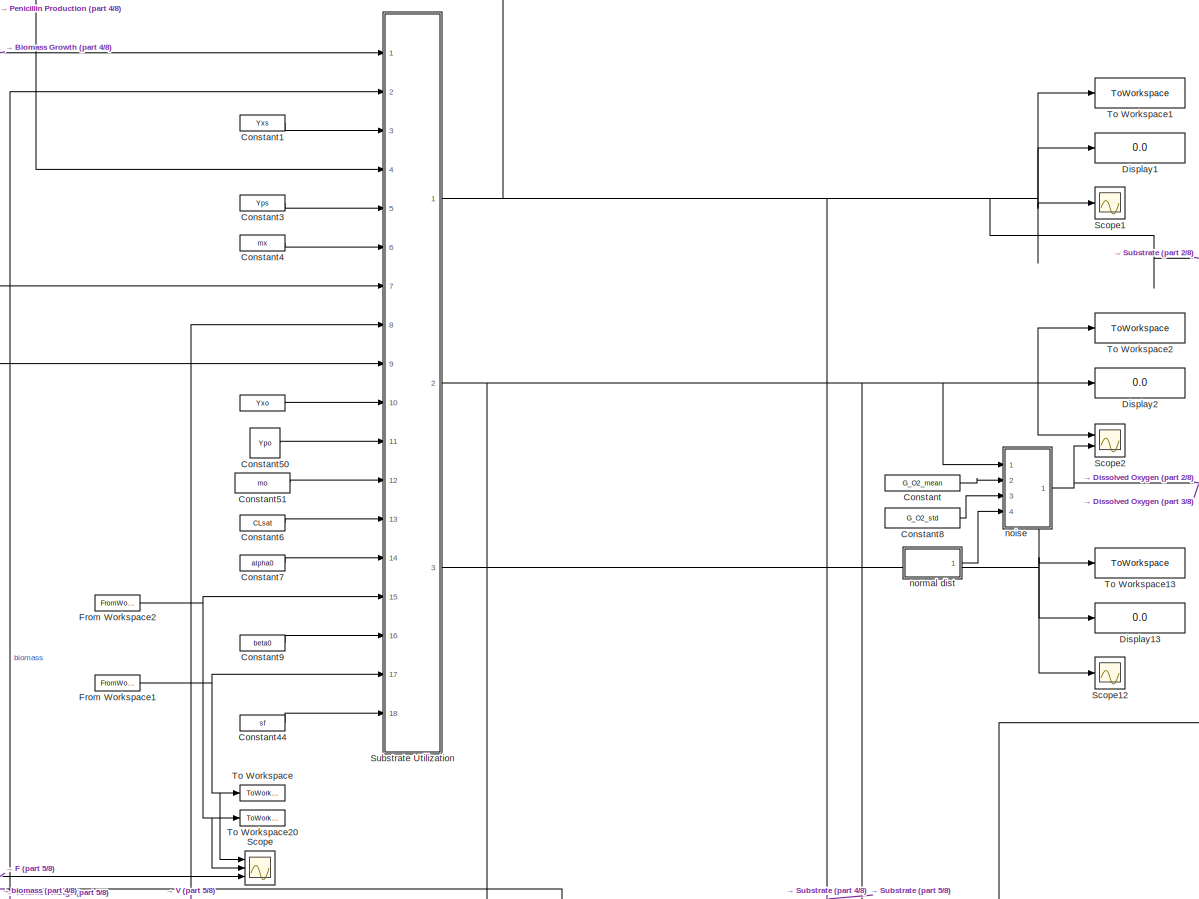
[diagram: root canvas - part 1/8, top center region]
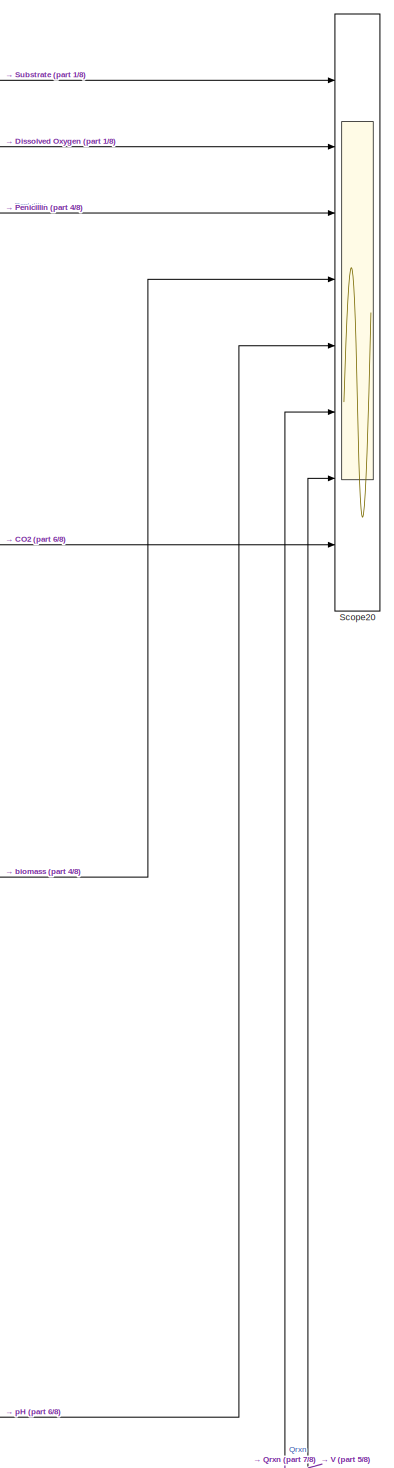
[diagram: root canvas - part 2/8, top right region]
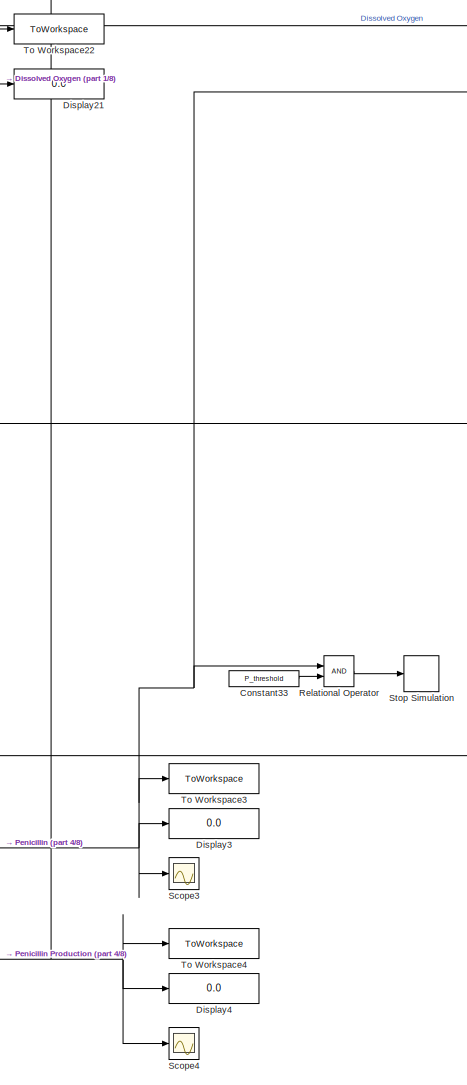
[diagram: root canvas - part 3/8, top right region]
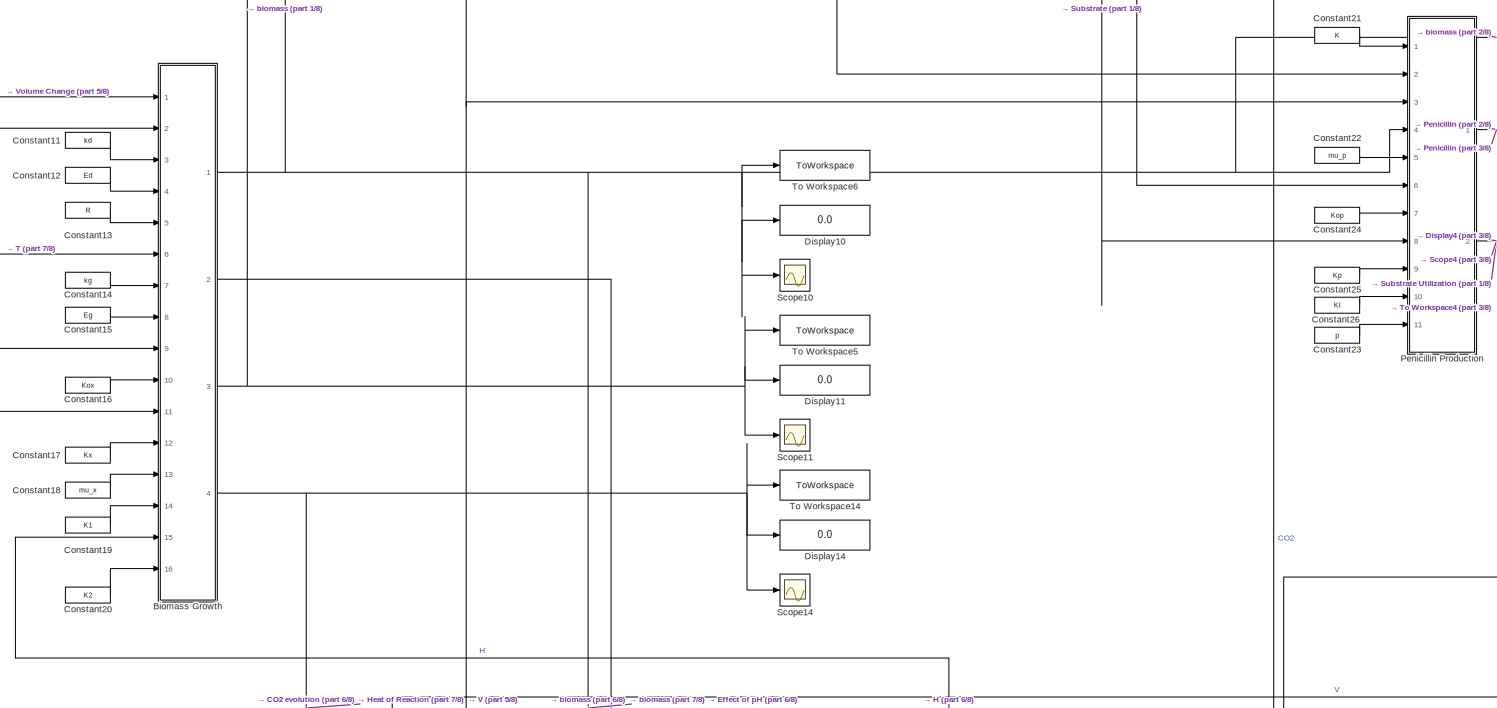
[diagram: root canvas - part 4/8, central region]
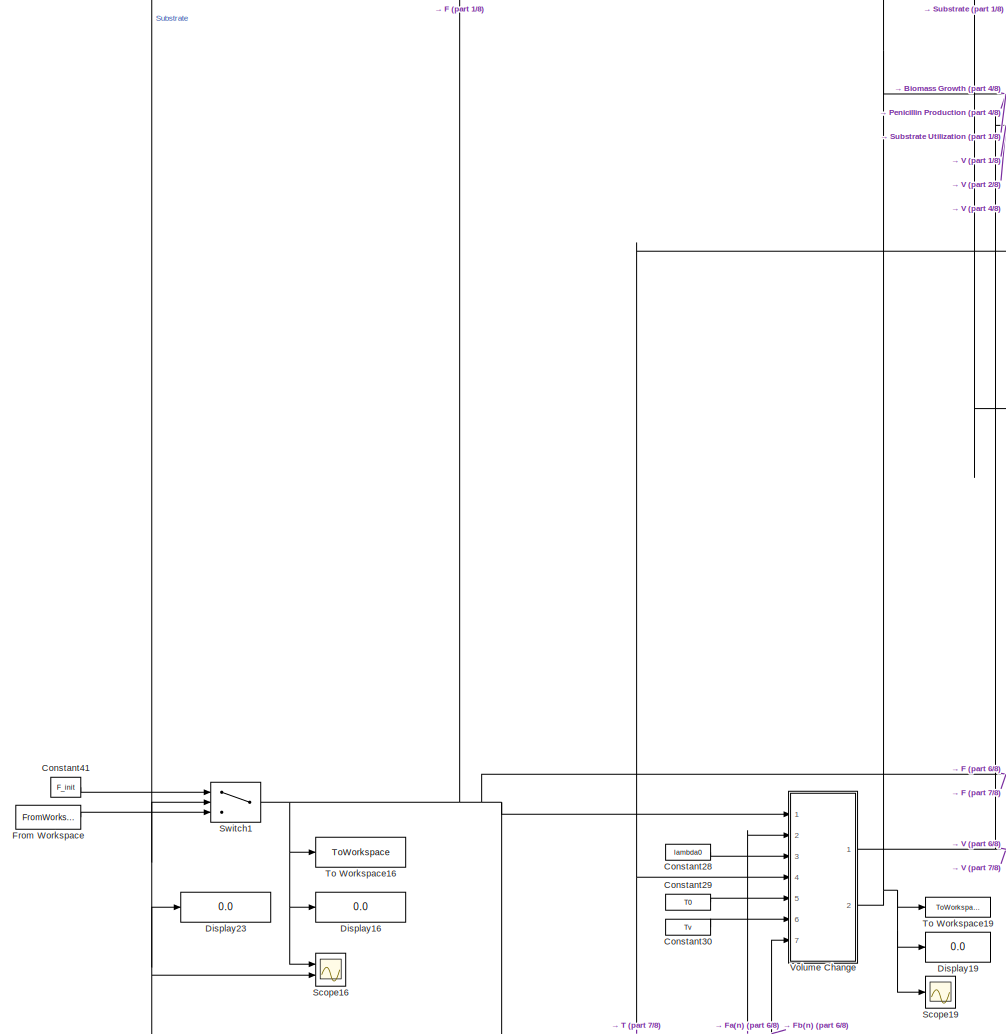
[diagram: root canvas - part 5/8, middle left region]
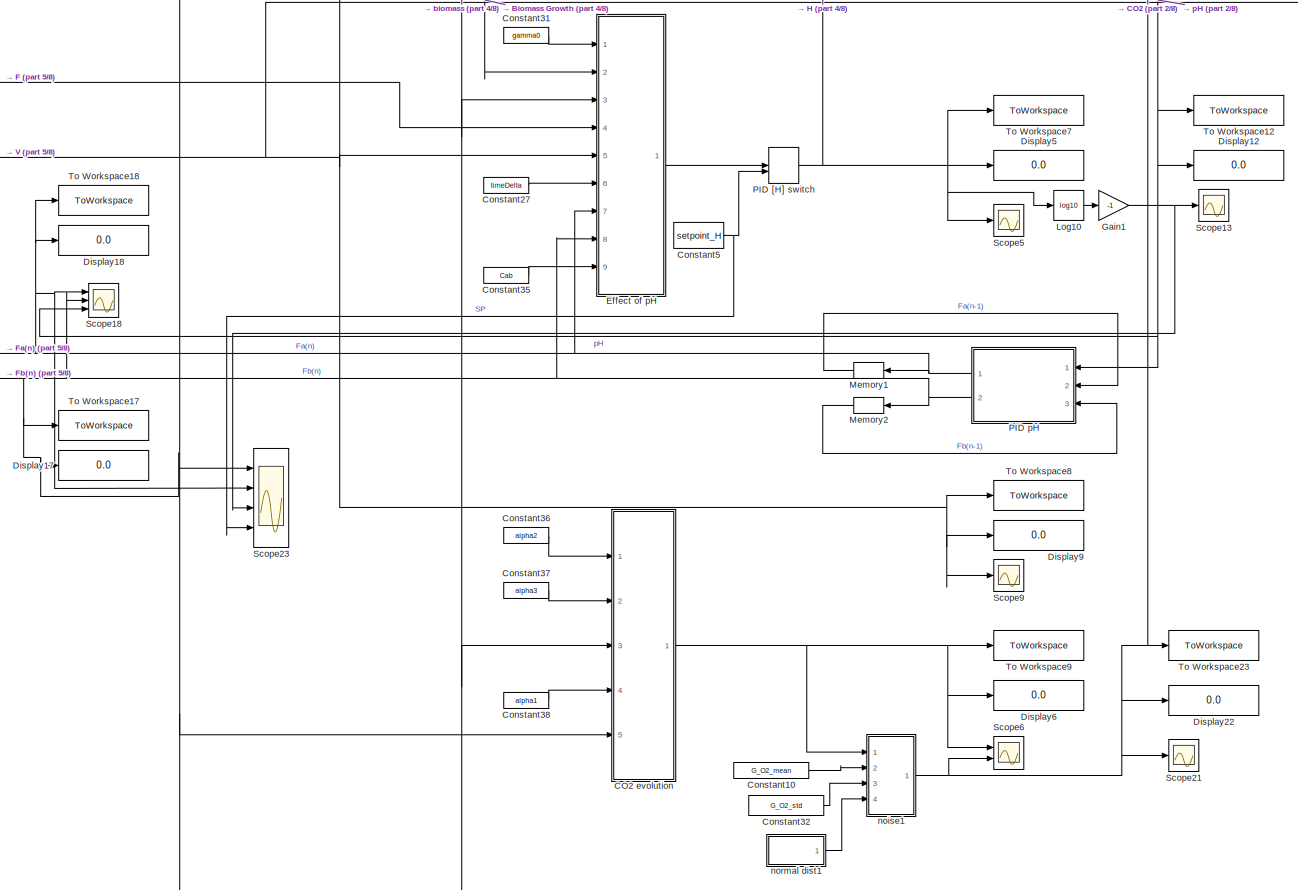
[diagram: root canvas - part 6/8, central region]
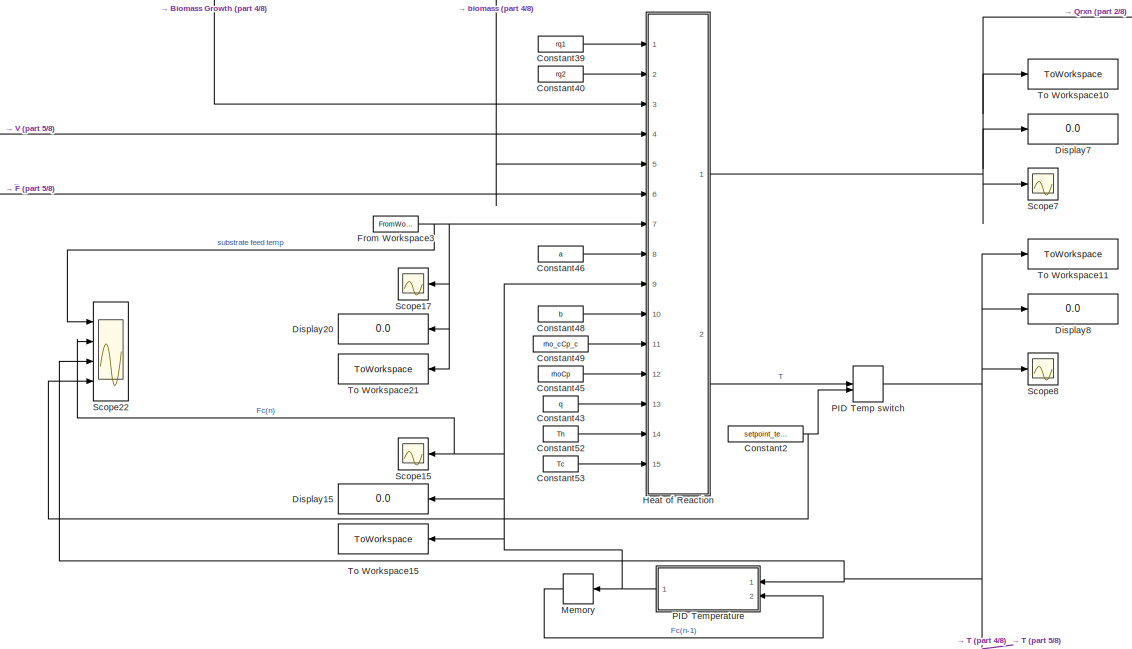
[diagram: root canvas - part 7/8, bottom center region]
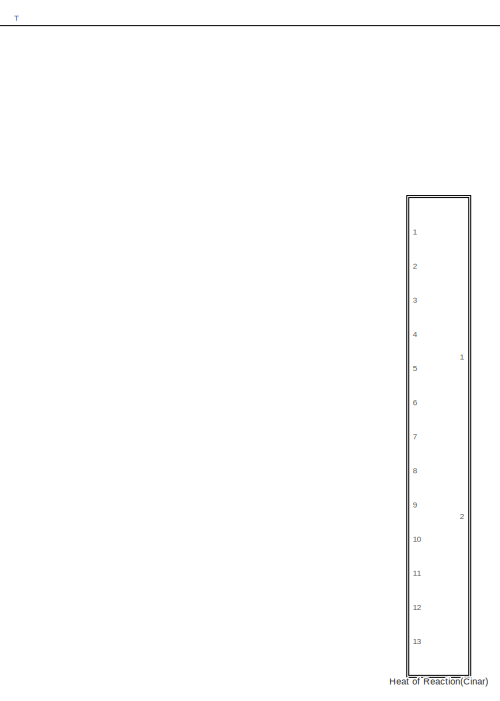
[diagram: root canvas - part 8/8, bottom center region]
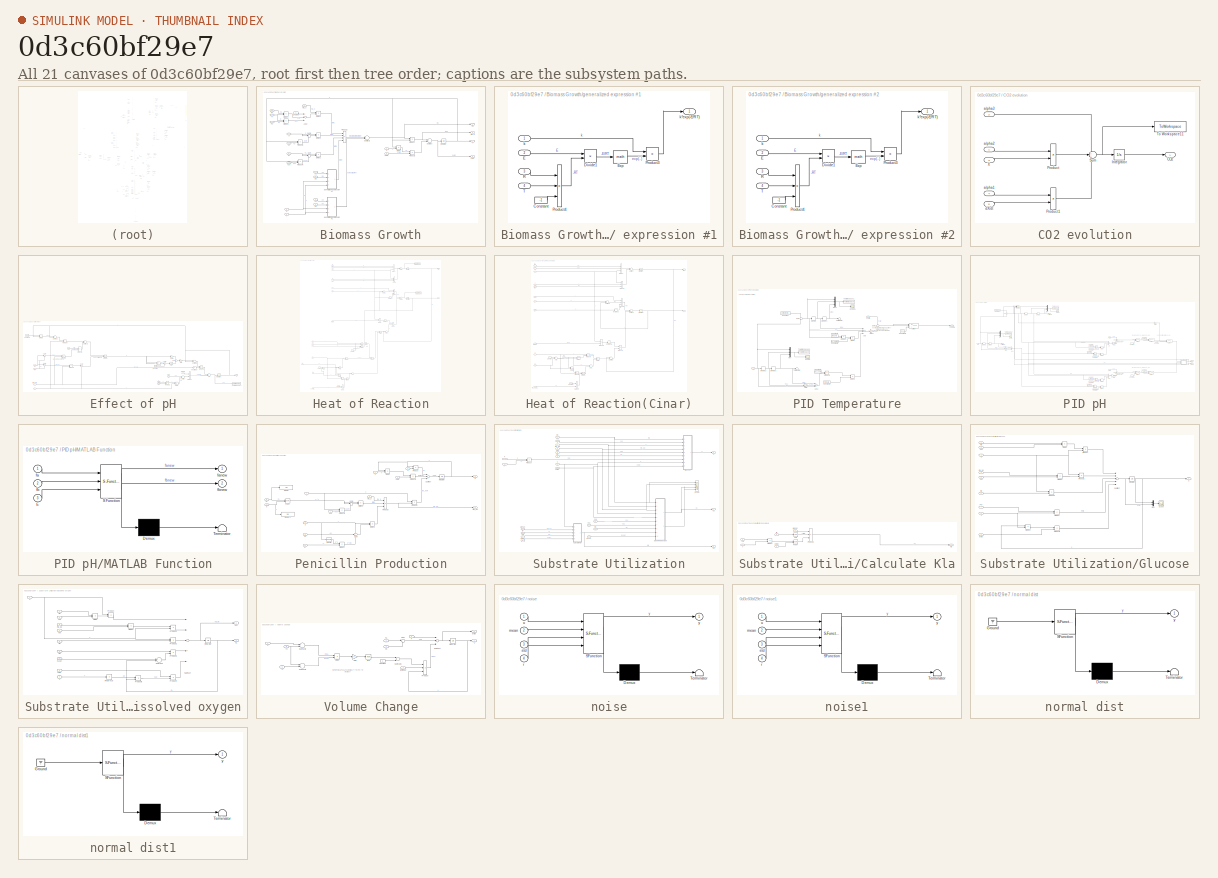
[diagram: thumbnail index - all 21 canvases of the model, root first then tree order]
MODEL slx_0d3c60bf29e7
KIND model
CONFIG AbsTol = auto
CONFIG EnableMultiTasking = off
CONFIG FixedStep = timeDelta
CONFIG MaxStep = auto
CONFIG MinStep = auto
CONFIG RelTol = 1e-3
CONFIG SampleTimeConstraint = Unconstrained
CONFIG Solver = FixedStepAuto
CONFIG SolverName = FixedStepAuto
CONFIG StartTime = 0.0
CONFIG StopTime = stopTime
BLOCK [Constant]  
  Value = Yxo
BLOCK [SubSystem] Biomass Growth
  Ports = [16, 4]
  RequestExecContextInheritance = off
BLOCK [Sum] Biomass Growth/Add2
  InputSameDT = off
  Inputs = 3
  OutDataTypeStr = Inherit: Inherit via internal rule
  Ports = [3, 1]
  SaturateOnIntegerOverflow = off
BLOCK [Inport] Biomass Growth/CL
  IconDisplay = Port number
  Port = 9
BLOCK [Constant] Biomass Growth/Constant
BLOCK [Product] Biomass Growth/Divide
  InputSameDT = off
  Inputs = */
  OutDataTypeStr = Inherit: Inherit via internal rule
  Ports = [2, 1]
  RndMeth = Floor
  SaturateOnIntegerOverflow = off
BLOCK [Product] Biomass Growth/Divide1
  InputSameDT = off
  Inputs = */
  OutDataTypeStr = Inherit: Inherit via internal rule
  Ports = [2, 1]
  RndMeth = Floor
  SaturateOnIntegerOverflow = off
BLOCK [Product] Biomass Growth/Divide2
  InputSameDT = off
  Inputs = */
  OutDataTypeStr = Inherit: Inherit via internal rule
  Ports = [2, 1]
  RndMeth = Floor
  SaturateOnIntegerOverflow = off
BLOCK [Product] Biomass Growth/Divide3
  InputSameDT = off
  Inputs = */
  OutDataTypeStr = Inherit: Inherit via internal rule
  Ports = [2, 1]
  RndMeth = Floor
  SaturateOnIntegerOverflow = off
BLOCK [Product] Biomass Growth/Divide4
  InputSameDT = off
  Inputs = */
  OutDataTypeStr = Inherit: Inherit via internal rule
  Ports = [2, 1]
  RndMeth = Floor
  SaturateOnIntegerOverflow = off
BLOCK [Product] Biomass Growth/Divide5
  InputSameDT = off
  Inputs = */
  OutDataTypeStr = Inherit: Inherit via internal rule
  Ports = [2, 1]
  RndMeth = Floor
  SaturateOnIntegerOverflow = off
BLOCK [Inport] Biomass Growth/Ed
  IconDisplay = Port number
  Port = 4
BLOCK [Inport] Biomass Growth/Eg
  IconDisplay = Port number
  Port = 8
BLOCK [Inport] Biomass Growth/H
  IconDisplay = Port number
  Port = 15
BLOCK [Integrator] Biomass Growth/Integrator
  InitialCondition = X_init
  Ports = [1, 1]
BLOCK [Inport] Biomass Growth/K1
  IconDisplay = Port number
  Port = 14
BLOCK [Inport] Biomass Growth/K2
  IconDisplay = Port number
  Port = 16
BLOCK [Inport] Biomass Growth/Kox
  IconDisplay = Port number
  Port = 10
BLOCK [Inport] Biomass Growth/Kx
  IconDisplay = Port number
  Port = 12
BLOCK [Product] Biomass Growth/Product
  InputSameDT = off
  OutDataTypeStr = Inherit: Inherit via internal rule
  Ports = [2, 1]
  RndMeth = Floor
  SaturateOnIntegerOverflow = off
BLOCK [Product] Biomass Growth/Product1
  InputSameDT = off
  OutDataTypeStr = Inherit: Inherit via internal rule
  Ports = [2, 1]
  RndMeth = Floor
  SaturateOnIntegerOverflow = off
BLOCK [Product] Biomass Growth/Product2
  InputSameDT = off
  Inputs = 4
  OutDataTypeStr = Inherit: Inherit via internal rule
  Ports = [4, 1]
  RndMeth = Floor
  SaturateOnIntegerOverflow = off
BLOCK [Product] Biomass Growth/Product3
  InputSameDT = off
  OutDataTypeStr = Inherit: Inherit via internal rule
  Ports = [2, 1]
  RndMeth = Floor
  SaturateOnIntegerOverflow = off
BLOCK [Product] Biomass Growth/Product4
  InputSameDT = off
  OutDataTypeStr = Inherit: Inherit via internal rule
  Ports = [2, 1]
  RndMeth = Floor
  SaturateOnIntegerOverflow = off
BLOCK [Inport] Biomass Growth/R
  IconDisplay = Port number
  Port = 5
BLOCK [Inport] Biomass Growth/S
  IconDisplay = Port number
  Port = 11
BLOCK [Sum] Biomass Growth/Subtract
  InputSameDT = off
  Inputs = +-
  OutDataTypeStr = Inherit: Inherit via internal rule
  Ports = [2, 1]
  SaturateOnIntegerOverflow = off
BLOCK [Sum] Biomass Growth/Subtract1
  InputSameDT = off
  Inputs = +-
  OutDataTypeStr = Inherit: Inherit via internal rule
  Ports = [2, 1]
  SaturateOnIntegerOverflow = off
BLOCK [Sum] Biomass Growth/Sum
  IconShape = round
  InputSameDT = off
  Inputs = |++
  OutDataTypeStr = Inherit: Inherit via internal rule
  Ports = [2, 1]
  SaturateOnIntegerOverflow = off
BLOCK [Sum] Biomass Growth/Sum1
  IconShape = round
  InputSameDT = off
  Inputs = |++
  OutDataTypeStr = Inherit: Inherit via internal rule
  Ports = [2, 1]
  SaturateOnIntegerOverflow = off
BLOCK [Inport] Biomass Growth/T
  IconDisplay = Port number
  Port = 6
BLOCK [Inport] Biomass Growth/V
  IconDisplay = Port number
  Port = 2
BLOCK [Outport] Biomass Growth/X
  IconDisplay = Port number
BLOCK [Inport] Biomass Growth/dV//dt
  IconDisplay = Port number
BLOCK [Outport] Biomass Growth/dX//dt
  IconDisplay = Port number
  Port = 4
BLOCK [SubSystem] Biomass Growth/generalized expression #1
  Ports = [4, 1]
  RequestExecContextInheritance = off
BLOCK [Constant] Biomass Growth/generalized expression #1/Constant
  Value = -1
BLOCK [Product] Biomass Growth/generalized expression #1/Divide1
  InputSameDT = off
  Inputs = */
  OutDataTypeStr = Inherit: Inherit via internal rule
  Ports = [2, 1]
  RndMeth = Floor
  SaturateOnIntegerOverflow = off
BLOCK [Inport] Biomass Growth/generalized expression #1/E
  IconDisplay = Port number
  Port = 2
BLOCK [Math] Biomass Growth/generalized expression #1/Exp
  Ports = [1, 1]
  SignedPower = off
BLOCK [Product] Biomass Growth/generalized expression #1/Product3
  InputSameDT = off
  OutDataTypeStr = Inherit: Inherit via internal rule
  Ports = [2, 1]
  RndMeth = Floor
  SaturateOnIntegerOverflow = off
BLOCK [Product] Biomass Growth/generalized expression #1/Product4
  InputSameDT = off
  Inputs = 3
  OutDataTypeStr = Inherit: Inherit via internal rule
  Ports = [3, 1]
  RndMeth = Floor
  SaturateOnIntegerOverflow = off
BLOCK [Inport] Biomass Growth/generalized expression #1/R
  IconDisplay = Port number
  Port = 3
BLOCK [Inport] Biomass Growth/generalized expression #1/T
  IconDisplay = Port number
  Port = 4
BLOCK [Inport] Biomass Growth/generalized expression #1/k
  IconDisplay = Port number
BLOCK [Outport] Biomass Growth/generalized expression #1/k*exp(-E//RT)
  IconDisplay = Port number
BLOCK [SubSystem] Biomass Growth/generalized expression #2
  Ports = [4, 1]
  RequestExecContextInheritance = off
BLOCK [Constant] Biomass Growth/generalized expression #2/Constant
  Value = -1
BLOCK [Product] Biomass Growth/generalized expression #2/Divide1
  InputSameDT = off
  Inputs = */
  OutDataTypeStr = Inherit: Inherit via internal rule
  Ports = [2, 1]
  RndMeth = Floor
  SaturateOnIntegerOverflow = off
BLOCK [Inport] Biomass Growth/generalized expression #2/E
  IconDisplay = Port number
  Port = 2
BLOCK [Math] Biomass Growth/generalized expression #2/Exp
  Ports = [1, 1]
  SignedPower = off
BLOCK [Product] Biomass Growth/generalized expression #2/Product3
  InputSameDT = off
  OutDataTypeStr = Inherit: Inherit via internal rule
  Ports = [2, 1]
  RndMeth = Floor
  SaturateOnIntegerOverflow = off
BLOCK [Product] Biomass Growth/generalized expression #2/Product4
  InputSameDT = off
  Inputs = 3
  OutDataTypeStr = Inherit: Inherit via internal rule
  Ports = [3, 1]
  RndMeth = Floor
  SaturateOnIntegerOverflow = off
BLOCK [Inport] Biomass Growth/generalized expression #2/R
  IconDisplay = Port number
  Port = 3
BLOCK [Inport] Biomass Growth/generalized expression #2/T
  IconDisplay = Port number
  Port = 4
BLOCK [Inport] Biomass Growth/generalized expression #2/k
  IconDisplay = Port number
BLOCK [Outport] Biomass Growth/generalized expression #2/k*exp(-E//RT)
  IconDisplay = Port number
BLOCK [Inport] Biomass Growth/kd
  IconDisplay = Port number
  Port = 3
BLOCK [Inport] Biomass Growth/kg
  IconDisplay = Port number
  Port = 7
BLOCK [Outport] Biomass Growth/mu
  IconDisplay = Port number
  Port = 3
BLOCK [Outport] Biomass Growth/mu*X
  IconDisplay = Port number
  Port = 2
BLOCK [Inport] Biomass Growth/mu_x
  IconDisplay = Port number
  Port = 13
BLOCK [SubSystem] CO2 evolution
  Ports = [5, 1]
  RequestExecContextInheritance = off
BLOCK [Outport] CO2 evolution/CO2
  IconDisplay = Port number
BLOCK [Integrator] CO2 evolution/Integrator
  InitialCondition = CO2_init
  Ports = [1, 1]
BLOCK [Product] CO2 evolution/Product
  InputSameDT = off
  OutDataTypeStr = Inherit: Inherit via internal rule
  Ports = [2, 1]
  RndMeth = Floor
  SaturateOnIntegerOverflow = off
BLOCK [Product] CO2 evolution/Product1
  InputSameDT = off
  OutDataTypeStr = Inherit: Inherit via internal rule
  Ports = [2, 1]
  RndMeth = Floor
  SaturateOnIntegerOverflow = off
BLOCK [Sum] CO2 evolution/Sum
  IconShape = round
  InputSameDT = off
  Inputs = +++
  OutDataTypeStr = Inherit: Inherit via internal rule
  Ports = [3, 1]
  SaturateOnIntegerOverflow = off
BLOCK [ToWorkspace] CO2 evolution/To Workspace11
  FixptAsFi = on
  MaxDataPoints = inf
  Ports = [1]
  SampleTime = -1
  SaveFormat = Timeseries
  VariableName = dCO2
BLOCK [Inport] CO2 evolution/X
  IconDisplay = Port number
  Port = 3
BLOCK [Inport] CO2 evolution/alpha1
  IconDisplay = Port number
  Port = 4
BLOCK [Inport] CO2 evolution/alpha2
  IconDisplay = Port number
BLOCK [Inport] CO2 evolution/alpha3
  IconDisplay = Port number
  Port = 2
BLOCK [Inport] CO2 evolution/dX//dt
  IconDisplay = Port number
  Port = 5
BLOCK [Constant] Constant
  Value = G_O2_mean
BLOCK [Constant] Constant1
  Value = Yxs
BLOCK [Constant] Constant10
  Value = G_O2_mean
BLOCK [Constant] Constant11
  Value = kd
BLOCK [Constant] Constant12
  Value = Ed
BLOCK [Constant] Constant13
  Value = R
BLOCK [Constant] Constant14
  Value = kg
BLOCK [Constant] Constant15
  Value = Eg
BLOCK [Constant] Constant16
  Value = Kox
BLOCK [Constant] Constant17
  Value = Kx
BLOCK [Constant] Constant18
  Value = mu_x
BLOCK [Constant] Constant19
  Value = K1
BLOCK [Constant] Constant2
  Value = setpoint_temp
BLOCK [Constant] Constant20
  Value = K2
BLOCK [Constant] Constant21
  Value = K
BLOCK [Constant] Constant22
  Value = mu_p
BLOCK [Constant] Constant23
  Value = p
BLOCK [Constant] Constant24
  Value = Kop
BLOCK [Constant] Constant25
  Value = Kp
BLOCK [Constant] Constant26
  Value = KI
BLOCK [Constant] Constant27
  Value = timeDelta
BLOCK [Constant] Constant28
  Value = lambda0
BLOCK [Constant] Constant29
  Value = T0
BLOCK [Constant] Constant3
  Value = Yps
BLOCK [Constant] Constant30
  Value = Tv
BLOCK [Constant] Constant31
  Value = gamma0
BLOCK [Constant] Constant32
  Value = G_O2_std
BLOCK [Constant] Constant33
  Value = P_threshold
BLOCK [Constant] Constant35
  Value = Cab
BLOCK [Constant] Constant36
  Value = alpha2
BLOCK [Constant] Constant37
  Value = alpha3
BLOCK [Constant] Constant38
  Value = alpha1
BLOCK [Constant] Constant39
  Value = rq1
BLOCK [Constant] Constant4
  Value = mx
BLOCK [Constant] Constant40
  Value = rq2
BLOCK [Constant] Constant41
  Value = F_init
BLOCK [Constant] Constant43
  Value = q
BLOCK [Constant] Constant44
  Value = sf
BLOCK [Constant] Constant45
  Value = rhoCp
BLOCK [Constant] Constant46
  Value = a
BLOCK [Constant] Constant48
  Value = b
BLOCK [Constant] Constant49
  Value = rho_cCp_c
BLOCK [Constant] Constant5
  Value = setpoint_H
BLOCK [Constant] Constant50
  Value = Ypo
BLOCK [Constant] Constant51
  Value = mo
BLOCK [Constant] Constant52
  Value = Th
BLOCK [Constant] Constant53
  Value = Tc
BLOCK [Constant] Constant6
  Value = CLsat
BLOCK [Constant] Constant7
  Value = alpha0
BLOCK [Constant] Constant8
  Value = G_O2_std
BLOCK [Constant] Constant9
  Value = beta0
BLOCK [Display] Display1
  Decimation = 1
  Ports = [1]
BLOCK [Display] Display10
  Decimation = 1
  Ports = [1]
BLOCK [Display] Display11
  Decimation = 1
  Ports = [1]
BLOCK [Display] Display12
  Decimation = 1
  Ports = [1]
BLOCK [Display] Display13
  Decimation = 1
  Ports = [1]
BLOCK [Display] Display14
  Decimation = 1
  Ports = [1]
BLOCK [Display] Display15
  Decimation = 1
  Ports = [1]
BLOCK [Display] Display16
  Decimation = 1
  Ports = [1]
BLOCK [Display] Display17
  Decimation = 1
  Ports = [1]
BLOCK [Display] Display18
  Decimation = 1
  Ports = [1]
BLOCK [Display] Display19
  Decimation = 1
  Ports = [1]
BLOCK [Display] Display2
  Decimation = 1
  Ports = [1]
BLOCK [Display] Display20
  Decimation = 1
  Ports = [1]
BLOCK [Display] Display21
  Decimation = 1
  Ports = [1]
BLOCK [Display] Display22
  Decimation = 1
  Ports = [1]
BLOCK [Display] Display23
  Decimation = 1
  Ports = [1]
BLOCK [Display] Display3
  Decimation = 1
  Ports = [1]
BLOCK [Display] Display4
  Decimation = 1
  Ports = [1]
BLOCK [Display] Display5
  Decimation = 1
  Ports = [1]
BLOCK [Display] Display6
  Decimation = 1
  Ports = [1]
BLOCK [Display] Display7
  Decimation = 1
  Ports = [1]
BLOCK [Display] Display8
  Decimation = 1
  Ports = [1]
BLOCK [Display] Display9
  Decimation = 1
  Ports = [1]
BLOCK [SubSystem] Effect of pH
  Ports = [9, 1]
  RequestExecContextInheritance = off
BLOCK [Sum] Effect of pH/Add
  InputSameDT = off
  OutDataTypeStr = Inherit: Inherit via internal rule
  Ports = [2, 1]
  SaturateOnIntegerOverflow = off
BLOCK [Inport] Effect of pH/Cab
  IconDisplay = Port number
  Port = 9
BLOCK [Constant] Effect of pH/Constant
  Value = 4e-14
BLOCK [Constant] Effect of pH/Constant1
  Value = 1e-14
BLOCK [Product] Effect of pH/Divide
  InputSameDT = off
  Inputs = */
  OutDataTypeStr = Inherit: Inherit via internal rule
  Ports = [2, 1]
  RndMeth = Floor
  SaturateOnIntegerOverflow = off
BLOCK [Product] Effect of pH/Divide1
  InputSameDT = off
  Inputs = */
  OutDataTypeStr = Inherit: Inherit via internal rule
  Ports = [2, 1]
  RndMeth = Floor
  SaturateOnIntegerOverflow = off
BLOCK [Product] Effect of pH/Divide2
  InputSameDT = off
  Inputs = */
  OutDataTypeStr = Inherit: Inherit via internal rule
  Ports = [2, 1]
  RndMeth = Floor
  SaturateOnIntegerOverflow = off
BLOCK [Inport] Effect of pH/F
  IconDisplay = Port number
  Port = 4
BLOCK [Inport] Effect of pH/Fa
  IconDisplay = Port number
  Port = 7
BLOCK [Inport] Effect of pH/Fb
  IconDisplay = Port number
  Port = 8
BLOCK [Gain] Effect of pH/Gain
  Gain = 0.5
  OutDataTypeStr = Inherit: Inherit via internal rule
  ParamDataTypeStr = Inherit: Inherit via internal rule
  SaturateOnIntegerOverflow = off
BLOCK [Gain] Effect of pH/Gain1
  Gain = -1
  OutDataTypeStr = Inherit: Inherit via internal rule
  ParamDataTypeStr = Inherit: Inherit via internal rule
  SaturateOnIntegerOverflow = off
BLOCK [Outport] Effect of pH/H
  IconDisplay = Port number
BLOCK [Integrator] Effect of pH/Integrator
  InitialCondition = H_init
  Ports = [1, 1]
BLOCK [Product] Effect of pH/Product
  InputSameDT = off
  OutDataTypeStr = Inherit: Inherit via internal rule
  Ports = [2, 1]
  RndMeth = Floor
  SaturateOnIntegerOverflow = off
BLOCK [Product] Effect of pH/Product1
  InputSameDT = off
  OutDataTypeStr = Inherit: Inherit via internal rule
  Ports = [2, 1]
  RndMeth = Floor
  SaturateOnIntegerOverflow = off
BLOCK [Product] Effect of pH/Product2
  InputSameDT = off
  OutDataTypeStr = Inherit: Inherit via internal rule
  Ports = [2, 1]
  RndMeth = Floor
  SaturateOnIntegerOverflow = off
BLOCK [Product] Effect of pH/Product3
  InputSameDT = off
  OutDataTypeStr = Inherit: Inherit via internal rule
  Ports = [2, 1]
  RndMeth = Floor
  SaturateOnIntegerOverflow = off
BLOCK [Product] Effect of pH/Product4
  InputSameDT = off
  OutDataTypeStr = Inherit: Inherit via internal rule
  Ports = [2, 1]
  RndMeth = Floor
  SaturateOnIntegerOverflow = off
BLOCK [Product] Effect of pH/Product5
  InputSameDT = off
  OutDataTypeStr = Inherit: Inherit via internal rule
  Ports = [2, 1]
  RndMeth = Floor
  SaturateOnIntegerOverflow = off
BLOCK [Product] Effect of pH/Product6
  InputSameDT = off
  OutDataTypeStr = Inherit: Inherit via internal rule
  Ports = [2, 1]
  RndMeth = Floor
  SaturateOnIntegerOverflow = off
BLOCK [Product] Effect of pH/Product7
  InputSameDT = off
  OutDataTypeStr = Inherit: Inherit via internal rule
  Ports = [2, 1]
  RndMeth = Floor
  SaturateOnIntegerOverflow = off
BLOCK [Product] Effect of pH/Reciprocal
  InputSameDT = off
  Inputs = /
  OutDataTypeStr = Inherit: Inherit via internal rule
  Ports = [1, 1]
  RndMeth = Floor
  SaturateOnIntegerOverflow = off
BLOCK [Sqrt] Effect of pH/Sqrt
BLOCK [Sum] Effect of pH/Subtract
  InputSameDT = off
  Inputs = +-
  OutDataTypeStr = Inherit: Inherit via internal rule
  Ports = [2, 1]
  SaturateOnIntegerOverflow = off
BLOCK [Sum] Effect of pH/Subtract1
  InputSameDT = off
  Inputs = +-
  OutDataTypeStr = Inherit: Inherit via internal rule
  Ports = [2, 1]
  SaturateOnIntegerOverflow = off
BLOCK [Sum] Effect of pH/Subtract2
  InputSameDT = off
  Inputs = +-
  OutDataTypeStr = Inherit: Inherit via internal rule
  Ports = [2, 1]
  SaturateOnIntegerOverflow = off
BLOCK [Sum] Effect of pH/Subtract3
  InputSameDT = off
  Inputs = +-
  OutDataTypeStr = Inherit: Inherit via internal rule
  Ports = [2, 1]
  SaturateOnIntegerOverflow = off
BLOCK [Sum] Effect of pH/Sum
  IconShape = round
  InputSameDT = off
  OutDataTypeStr = Inherit: Inherit via internal rule
  Ports = [2, 1]
  SaturateOnIntegerOverflow = off
BLOCK [Sum] Effect of pH/Sum1
  IconShape = round
  InputSameDT = off
  Inputs = |++
  OutDataTypeStr = Inherit: Inherit via internal rule
  Ports = [2, 1]
  SaturateOnIntegerOverflow = off
BLOCK [Sum] Effect of pH/Sum2
  IconShape = round
  InputSameDT = off
  Inputs = |++
  OutDataTypeStr = Inherit: Inherit via internal rule
  Ports = [2, 1]
  SaturateOnIntegerOverflow = off
BLOCK [Sum] Effect of pH/Sum3
  IconShape = round
  InputSameDT = off
  Inputs = |++
  OutDataTypeStr = Inherit: Inherit via internal rule
  Ports = [2, 1]
  SaturateOnIntegerOverflow = off
BLOCK [Sum] Effect of pH/Sum4
  IconShape = round
  InputSameDT = off
  Inputs = |+-
  OutDataTypeStr = Inherit: Inherit via internal rule
  Ports = [2, 1]
  SaturateOnIntegerOverflow = off
BLOCK [ToWorkspace] Effect of pH/To Workspace11
  FixptAsFi = on
  MaxDataPoints = inf
  Ports = [1]
  SampleTime = -1
  SaveFormat = Timeseries
  VariableName = dH
BLOCK [Inport] Effect of pH/V
  IconDisplay = Port number
  Port = 5
BLOCK [Inport] Effect of pH/X
  IconDisplay = Port number
  Port = 3
BLOCK [Inport] Effect of pH/gamma
  IconDisplay = Port number
BLOCK [Inport] Effect of pH/mu*X
  IconDisplay = Port number
  Port = 2
BLOCK [Inport] Effect of pH/timeDelta
  IconDisplay = Port number
  Port = 6
BLOCK [FromWorkspace] From Workspace
  SampleTime = 0
  VariableName = FArray
  ZeroCross = on
BLOCK [FromWorkspace] From Workspace1
  SampleTime = timeDelta
  VariableName = Pw_ts
  ZeroCross = on
BLOCK [FromWorkspace] From Workspace2
  SampleTime = timeDelta
  VariableName = fg_ts
  ZeroCross = on
BLOCK [FromWorkspace] From Workspace3
  SampleTime = timeDelta
  VariableName = Tf_ts
  ZeroCross = on
BLOCK [Gain] Gain1
  Gain = -1
  OutDataTypeStr = Inherit: Inherit via internal rule
  ParamDataTypeStr = Inherit: Inherit via internal rule
  SaturateOnIntegerOverflow = off
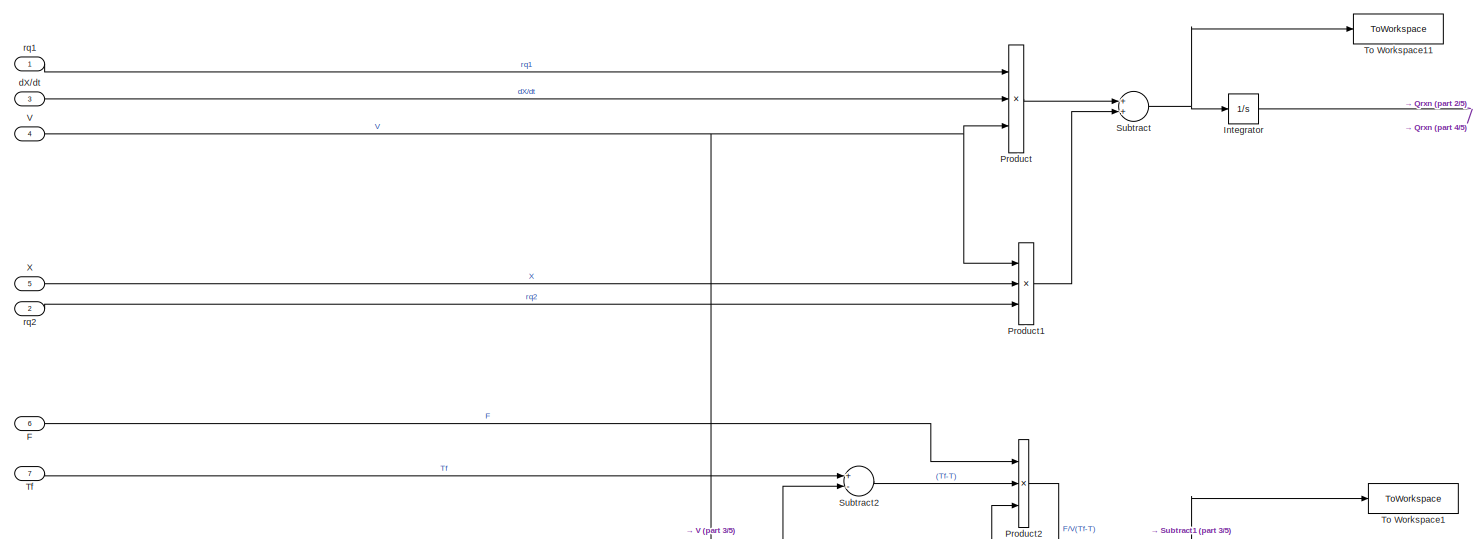
[diagram: Heat of Reaction - part 1/5, top center region]
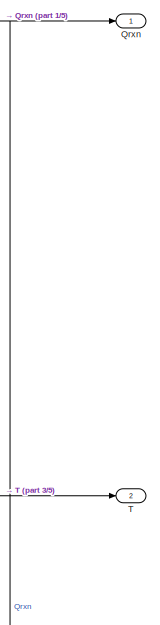
[diagram: Heat of Reaction - part 2/5, top right region]
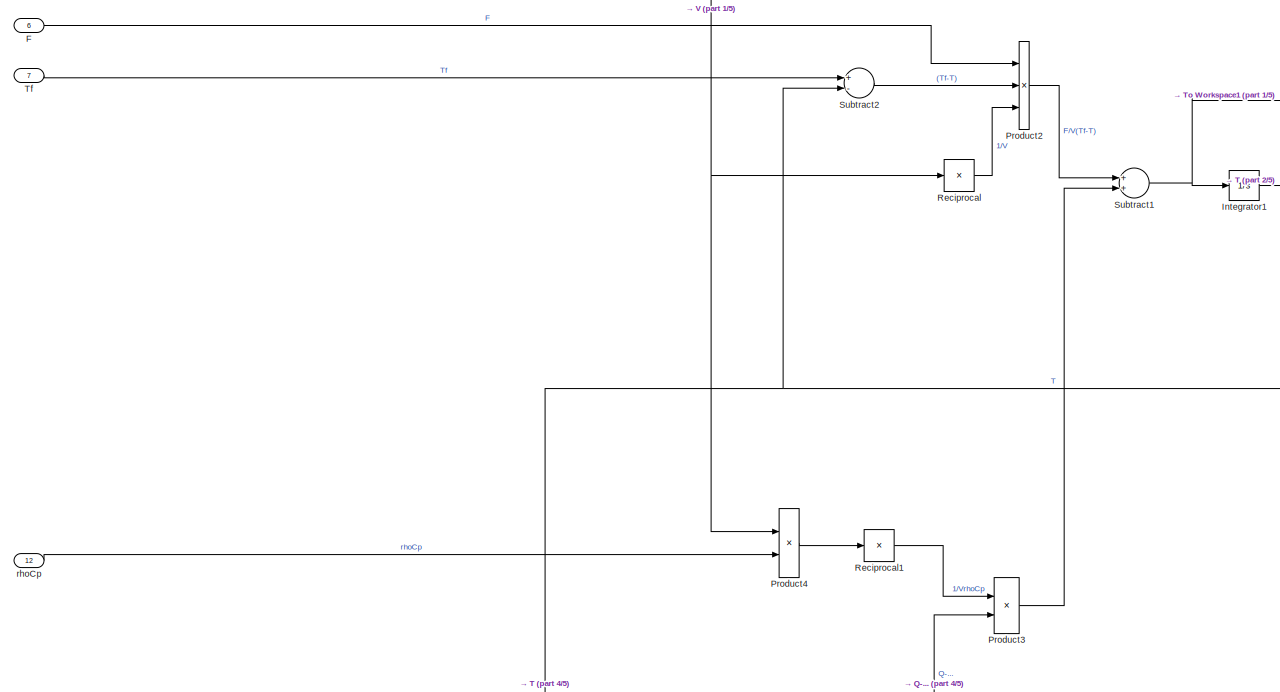
[diagram: Heat of Reaction - part 3/5, central region]
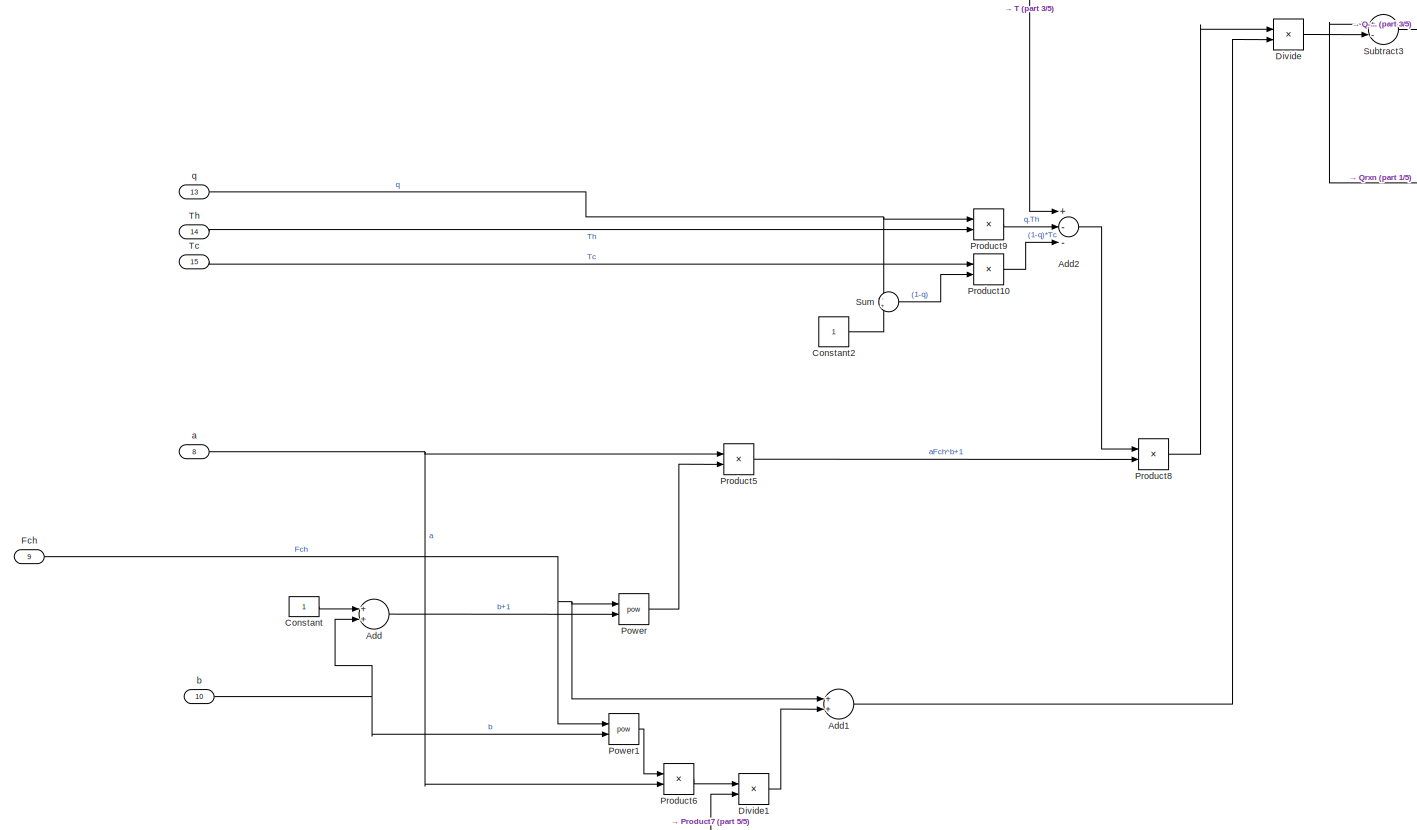
[diagram: Heat of Reaction - part 4/5, bottom left region]
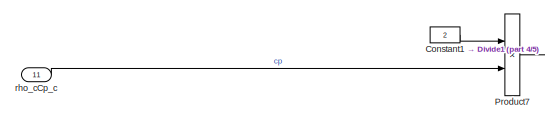
[diagram: Heat of Reaction - part 5/5, bottom left region]
BLOCK [SubSystem] Heat of Reaction
  Ports = [15, 2]
  RequestExecContextInheritance = off
BLOCK [SubSystem] Heat of Reaction(Cinar)
  Commented = on
  Ports = [13, 2]
  RequestExecContextInheritance = off
BLOCK [Sum] Heat of Reaction(Cinar)/Add
  InputSameDT = off
  OutDataTypeStr = Inherit: Inherit via internal rule
  Ports = [2, 1]
  SaturateOnIntegerOverflow = off
BLOCK [Sum] Heat of Reaction(Cinar)/Add1
  InputSameDT = off
  OutDataTypeStr = Inherit: Inherit via internal rule
  Ports = [2, 1]
  SaturateOnIntegerOverflow = off
BLOCK [Constant] Heat of Reaction(Cinar)/Constant
BLOCK [Constant] Heat of Reaction(Cinar)/Constant1
  Value = 2
BLOCK [Product] Heat of Reaction(Cinar)/Divide
  InputSameDT = off
  Inputs = */
  OutDataTypeStr = Inherit: Inherit via internal rule
  Ports = [2, 1]
  RndMeth = Floor
  SaturateOnIntegerOverflow = off
BLOCK [Product] Heat of Reaction(Cinar)/Divide1
  InputSameDT = off
  Inputs = */
  OutDataTypeStr = Inherit: Inherit via internal rule
  Ports = [2, 1]
  RndMeth = Floor
  SaturateOnIntegerOverflow = off
BLOCK [Inport] Heat of Reaction(Cinar)/F
  IconDisplay = Port number
  Port = 6
BLOCK [Inport] Heat of Reaction(Cinar)/Fc
  IconDisplay = Port number
  Port = 10
BLOCK [Integrator] Heat of Reaction(Cinar)/Integrator
  InitialCondition = Qrxn_init
  Ports = [1, 1]
BLOCK [Integrator] Heat of Reaction(Cinar)/Integrator1
  InitialCondition = T_init
  Ports = [1, 1]
BLOCK [Math] Heat of Reaction(Cinar)/Power
  Operator = pow
  Ports = [2, 1]
  SignedPower = off
BLOCK [Math] Heat of Reaction(Cinar)/Power1
  Operator = pow
  Ports = [2, 1]
  SignedPower = off
BLOCK [Product] Heat of Reaction(Cinar)/Product
  InputSameDT = off
  Inputs = 3
  OutDataTypeStr = Inherit: Inherit via internal rule
  Ports = [3, 1]
  RndMeth = Floor
  SaturateOnIntegerOverflow = off
BLOCK [Product] Heat of Reaction(Cinar)/Product1
  InputSameDT = off
  Inputs = 3
  OutDataTypeStr = Inherit: Inherit via internal rule
  Ports = [3, 1]
  RndMeth = Floor
  SaturateOnIntegerOverflow = off
BLOCK [Product] Heat of Reaction(Cinar)/Product2
  InputSameDT = off
  Inputs = 3
  OutDataTypeStr = Inherit: Inherit via internal rule
  Ports = [3, 1]
  RndMeth = Floor
  SaturateOnIntegerOverflow = off
BLOCK [Product] Heat of Reaction(Cinar)/Product3
  InputSameDT = off
  OutDataTypeStr = Inherit: Inherit via internal rule
  Ports = [2, 1]
  RndMeth = Floor
  SaturateOnIntegerOverflow = off
BLOCK [Product] Heat of Reaction(Cinar)/Product4
  InputSameDT = off
  OutDataTypeStr = Inherit: Inherit via internal rule
  Ports = [2, 1]
  RndMeth = Floor
  SaturateOnIntegerOverflow = off
BLOCK [Product] Heat of Reaction(Cinar)/Product5
  InputSameDT = off
  OutDataTypeStr = Inherit: Inherit via internal rule
  Ports = [2, 1]
  RndMeth = Floor
  SaturateOnIntegerOverflow = off
BLOCK [Product] Heat of Reaction(Cinar)/Product6
  InputSameDT = off
  OutDataTypeStr = Inherit: Inherit via internal rule
  Ports = [2, 1]
  RndMeth = Floor
  SaturateOnIntegerOverflow = off
BLOCK [Product] Heat of Reaction(Cinar)/Product7
  InputSameDT = off
  OutDataTypeStr = Inherit: Inherit via internal rule
  Ports = [2, 1]
  RndMeth = Floor
  SaturateOnIntegerOverflow = off
BLOCK [Outport] Heat of Reaction(Cinar)/Qrxn
  IconDisplay = Port number
BLOCK [Product] Heat of Reaction(Cinar)/Reciprocal
  InputSameDT = off
  Inputs = /
  OutDataTypeStr = Inherit: Inherit via internal rule
  Ports = [1, 1]
  RndMeth = Floor
  SaturateOnIntegerOverflow = off
BLOCK [Product] Heat of Reaction(Cinar)/Reciprocal1
  InputSameDT = off
  Inputs = /
  OutDataTypeStr = Inherit: Inherit via internal rule
  Ports = [1, 1]
  RndMeth = Floor
  SaturateOnIntegerOverflow = off
BLOCK [Sum] Heat of Reaction(Cinar)/Subtract
  InputSameDT = off
  OutDataTypeStr = Inherit: Inherit via internal rule
  Ports = [2, 1]
  SaturateOnIntegerOverflow = off
BLOCK [Sum] Heat of Reaction(Cinar)/Subtract1
  InputSameDT = off
  OutDataTypeStr = Inherit: Inherit via internal rule
  Ports = [2, 1]
  SaturateOnIntegerOverflow = off
BLOCK [Sum] Heat of Reaction(Cinar)/Subtract2
  InputSameDT = off
  Inputs = +-
  OutDataTypeStr = Inherit: Inherit via internal rule
  Ports = [2, 1]
  SaturateOnIntegerOverflow = off
BLOCK [Sum] Heat of Reaction(Cinar)/Subtract3
  InputSameDT = off
  Inputs = +-
  OutDataTypeStr = Inherit: Inherit via internal rule
  Ports = [2, 1]
  SaturateOnIntegerOverflow = off
BLOCK [Outport] Heat of Reaction(Cinar)/T
  IconDisplay = Port number
  Port = 2
BLOCK [Inport] Heat of Reaction(Cinar)/Tf
  IconDisplay = Port number
  Port = 7
BLOCK [Inport] Heat of Reaction(Cinar)/V
  IconDisplay = Port number
  Port = 4
BLOCK [Inport] Heat of Reaction(Cinar)/X
  IconDisplay = Port number
  Port = 5
BLOCK [Inport] Heat of Reaction(Cinar)/a
  IconDisplay = Port number
  Port = 9
BLOCK [Inport] Heat of Reaction(Cinar)/b
  IconDisplay = Port number
  Port = 11
BLOCK [Inport] Heat of Reaction(Cinar)/dX//dt
  IconDisplay = Port number
  Port = 3
BLOCK [Inport] Heat of Reaction(Cinar)/rhoCp
  IconDisplay = Port number
  Port = 13
BLOCK [Inport] Heat of Reaction(Cinar)/rho_cCp_c
  IconDisplay = Port number
  Port = 12
BLOCK [Inport] Heat of Reaction(Cinar)/rq1
  IconDisplay = Port number
BLOCK [Inport] Heat of Reaction(Cinar)/rq2
  IconDisplay = Port number
  Port = 2
BLOCK [Inport] Heat of Reaction(Cinar)/sf
  IconDisplay = Port number
  Port = 8
BLOCK [Sum] Heat of Reaction/Add
  InputSameDT = off
  OutDataTypeStr = Inherit: Inherit via internal rule
  Ports = [2, 1]
  SaturateOnIntegerOverflow = off
BLOCK [Sum] Heat of Reaction/Add1
  InputSameDT = off
  OutDataTypeStr = Inherit: Inherit via internal rule
  Ports = [2, 1]
  SaturateOnIntegerOverflow = off
BLOCK [Sum] Heat of Reaction/Add2
  InputSameDT = off
  Inputs = +--
  OutDataTypeStr = Inherit: Inherit via internal rule
  Ports = [3, 1]
  SaturateOnIntegerOverflow = off
BLOCK [Constant] Heat of Reaction/Constant
BLOCK [Constant] Heat of Reaction/Constant1
  Value = 2
BLOCK [Constant] Heat of Reaction/Constant2
BLOCK [Product] Heat of Reaction/Divide
  InputSameDT = off
  Inputs = */
  OutDataTypeStr = Inherit: Inherit via internal rule
  Ports = [2, 1]
  RndMeth = Floor
  SaturateOnIntegerOverflow = off
BLOCK [Product] Heat of Reaction/Divide1
  InputSameDT = off
  Inputs = */
  OutDataTypeStr = Inherit: Inherit via internal rule
  Ports = [2, 1]
  RndMeth = Floor
  SaturateOnIntegerOverflow = off
BLOCK [Inport] Heat of Reaction/F
  IconDisplay = Port number
  Port = 6
BLOCK [Inport] Heat of Reaction/Fch
  IconDisplay = Port number
  Port = 9
BLOCK [Integrator] Heat of Reaction/Integrator
  InitialCondition = Qrxn_init
  Ports = [1, 1]
BLOCK [Integrator] Heat of Reaction/Integrator1
  InitialCondition = T_init
  Ports = [1, 1]
BLOCK [Math] Heat of Reaction/Power
  Operator = pow
  Ports = [2, 1]
  SignedPower = off
BLOCK [Math] Heat of Reaction/Power1
  Operator = pow
  Ports = [2, 1]
  SignedPower = off
BLOCK [Product] Heat of Reaction/Product
  InputSameDT = off
  Inputs = 3
  OutDataTypeStr = Inherit: Inherit via internal rule
  Ports = [3, 1]
  RndMeth = Floor
  SaturateOnIntegerOverflow = off
BLOCK [Product] Heat of Reaction/Product1
  InputSameDT = off
  Inputs = 3
  OutDataTypeStr = Inherit: Inherit via internal rule
  Ports = [3, 1]
  RndMeth = Floor
  SaturateOnIntegerOverflow = off
BLOCK [Product] Heat of Reaction/Product10
  InputSameDT = off
  OutDataTypeStr = Inherit: Inherit via internal rule
  Ports = [2, 1]
  RndMeth = Floor
  SaturateOnIntegerOverflow = off
BLOCK [Product] Heat of Reaction/Product2
  InputSameDT = off
  Inputs = 3
  OutDataTypeStr = Inherit: Inherit via internal rule
  Ports = [3, 1]
  RndMeth = Floor
  SaturateOnIntegerOverflow = off
BLOCK [Product] Heat of Reaction/Product3
  InputSameDT = off
  OutDataTypeStr = Inherit: Inherit via internal rule
  Ports = [2, 1]
  RndMeth = Floor
  SaturateOnIntegerOverflow = off
BLOCK [Product] Heat of Reaction/Product4
  InputSameDT = off
  OutDataTypeStr = Inherit: Inherit via internal rule
  Ports = [2, 1]
  RndMeth = Floor
  SaturateOnIntegerOverflow = off
BLOCK [Product] Heat of Reaction/Product5
  InputSameDT = off
  OutDataTypeStr = Inherit: Inherit via internal rule
  Ports = [2, 1]
  RndMeth = Floor
  SaturateOnIntegerOverflow = off
BLOCK [Product] Heat of Reaction/Product6
  InputSameDT = off
  OutDataTypeStr = Inherit: Inherit via internal rule
  Ports = [2, 1]
  RndMeth = Floor
  SaturateOnIntegerOverflow = off
BLOCK [Product] Heat of Reaction/Product7
  InputSameDT = off
  OutDataTypeStr = Inherit: Inherit via internal rule
  Ports = [2, 1]
  RndMeth = Floor
  SaturateOnIntegerOverflow = off
BLOCK [Product] Heat of Reaction/Product8
  InputSameDT = off
  OutDataTypeStr = Inherit: Inherit via internal rule
  Ports = [2, 1]
  RndMeth = Floor
  SaturateOnIntegerOverflow = off
BLOCK [Product] Heat of Reaction/Product9
  InputSameDT = off
  OutDataTypeStr = Inherit: Inherit via internal rule
  Ports = [2, 1]
  RndMeth = Floor
  SaturateOnIntegerOverflow = off
BLOCK [Outport] Heat of Reaction/Qrxn
  IconDisplay = Port number
BLOCK [Product] Heat of Reaction/Reciprocal
  InputSameDT = off
  Inputs = /
  OutDataTypeStr = Inherit: Inherit via internal rule
  Ports = [1, 1]
  RndMeth = Floor
  SaturateOnIntegerOverflow = off
BLOCK [Product] Heat of Reaction/Reciprocal1
  InputSameDT = off
  Inputs = /
  OutDataTypeStr = Inherit: Inherit via internal rule
  Ports = [1, 1]
  RndMeth = Floor
  SaturateOnIntegerOverflow = off
BLOCK [Sum] Heat of Reaction/Subtract
  InputSameDT = off
  OutDataTypeStr = Inherit: Inherit via internal rule
  Ports = [2, 1]
  SaturateOnIntegerOverflow = off
BLOCK [Sum] Heat of Reaction/Subtract1
  InputSameDT = off
  OutDataTypeStr = Inherit: Inherit via internal rule
  Ports = [2, 1]
  SaturateOnIntegerOverflow = off
BLOCK [Sum] Heat of Reaction/Subtract2
  InputSameDT = off
  Inputs = +-
  OutDataTypeStr = Inherit: Inherit via internal rule
  Ports = [2, 1]
  SaturateOnIntegerOverflow = off
BLOCK [Sum] Heat of Reaction/Subtract3
  InputSameDT = off
  Inputs = +-
  OutDataTypeStr = Inherit: Inherit via internal rule
  Ports = [2, 1]
  SaturateOnIntegerOverflow = off
BLOCK [Sum] Heat of Reaction/Sum
  IconShape = round
  InputSameDT = off
  Inputs = -+
  OutDataTypeStr = Inherit: Inherit via internal rule
  Ports = [2, 1]
  SaturateOnIntegerOverflow = off
BLOCK [Outport] Heat of Reaction/T
  IconDisplay = Port number
  Port = 2
BLOCK [Inport] Heat of Reaction/Tc
  IconDisplay = Port number
  Port = 15
BLOCK [Inport] Heat of Reaction/Tf
  IconDisplay = Port number
  Port = 7
BLOCK [Inport] Heat of Reaction/Th
  IconDisplay = Port number
  Port = 14
BLOCK [ToWorkspace] Heat of Reaction/To Workspace1
  FixptAsFi = on
  MaxDataPoints = inf
  Ports = [1]
  SampleTime = -1
  SaveFormat = Timeseries
  VariableName = dT
BLOCK [ToWorkspace] Heat of Reaction/To Workspace11
  FixptAsFi = on
  MaxDataPoints = inf
  Ports = [1]
  SampleTime = -1
  SaveFormat = Timeseries
  VariableName = dQ
BLOCK [Inport] Heat of Reaction/V
  IconDisplay = Port number
  Port = 4
BLOCK [Inport] Heat of Reaction/X
  IconDisplay = Port number
  Port = 5
BLOCK [Inport] Heat of Reaction/a
  IconDisplay = Port number
  Port = 8
BLOCK [Inport] Heat of Reaction/b
  IconDisplay = Port number
  Port = 10
BLOCK [Inport] Heat of Reaction/dX//dt
  IconDisplay = Port number
  Port = 3
BLOCK [Inport] Heat of Reaction/q
  IconDisplay = Port number
  Port = 13
BLOCK [Inport] Heat of Reaction/rhoCp
  IconDisplay = Port number
  Port = 12
BLOCK [Inport] Heat of Reaction/rho_cCp_c
  IconDisplay = Port number
  Port = 11
BLOCK [Inport] Heat of Reaction/rq1
  IconDisplay = Port number
BLOCK [Inport] Heat of Reaction/rq2
  IconDisplay = Port number
  Port = 2
BLOCK [Math] Log10
  Operator = log10
  Ports = [1, 1]
  SignedPower = off
BLOCK [Memory] Memory
  InitialCondition = Fc_init
BLOCK [Memory] Memory1
  InitialCondition = Fa_init
BLOCK [Memory] Memory2
  InitialCondition = Fb_init
BLOCK [ManualSwitch] PID Temp switch
BLOCK [SubSystem] PID Temperature
  Ports = [2, 1]
  RequestExecContextInheritance = off
BLOCK [Sum] PID Temperature/Add
  InputSameDT = off
  Inputs = -++-
  OutDataTypeStr = Inherit: Inherit via internal rule
  Ports = [4, 1]
  SaturateOnIntegerOverflow = off
BLOCK [Sum] PID Temperature/Add1
  InputSameDT = off
  Inputs = +-+
  OutDataTypeStr = Inherit: Inherit via internal rule
  Ports = [3, 1]
  SaturateOnIntegerOverflow = off
BLOCK [Constant] PID Temperature/Constant
  Value = setpoint_temp
BLOCK [Constant] PID Temperature/Constant1
  Value = timeDelta
BLOCK [Constant] PID Temperature/Constant2
  Value = tauI_cooling
BLOCK [Constant] PID Temperature/Constant3
  Value = timeDelta
BLOCK [Constant] PID Temperature/Constant4
  Value = tauD_cooling
BLOCK [Constant] PID Temperature/Constant5
  Value = 0.001
BLOCK [Product] PID Temperature/Divide
  InputSameDT = off
  Inputs = */
  OutDataTypeStr = Inherit: Inherit via internal rule
  Ports = [2, 1]
  RndMeth = Floor
  SaturateOnIntegerOverflow = off
BLOCK [Product] PID Temperature/Divide1
  InputSameDT = off
  Inputs = */
  OutDataTypeStr = Inherit: Inherit via internal rule
  Ports = [2, 1]
  RndMeth = Floor
  SaturateOnIntegerOverflow = off
BLOCK [Outport] PID Temperature/Fc,new
  IconDisplay = Port number
BLOCK [Inport] PID Temperature/Fc,old
  IconDisplay = Port number
  Port = 2
BLOCK [Gain] PID Temperature/Gain
  Gain = 2
  OutDataTypeStr = Inherit: Inherit via internal rule
  ParamDataTypeStr = Inherit: Inherit via internal rule
  SaturateOnIntegerOverflow = off
BLOCK [Gain] PID Temperature/Gain1
  Gain = Kc_cooling
  OutDataTypeStr = Inherit: Inherit via internal rule
  ParamDataTypeStr = Inherit: Inherit via internal rule
  SaturateOnIntegerOverflow = off
BLOCK [Memory] PID Temperature/Memory
BLOCK [Memory] PID Temperature/Memory1
BLOCK [Memory] PID Temperature/Memory2
  InitialCondition = T_init
BLOCK [Memory] PID Temperature/Memory3
  InitialCondition = T_init
BLOCK [Mux] PID Temperature/Mux
  DisplayOption = bar
  Inputs = 3
  Ports = [3, 1]
BLOCK [Mux] PID Temperature/Mux1
  DisplayOption = bar
  Inputs = 3
  Ports = [3, 1]
BLOCK [Product] PID Temperature/Product
  InputSameDT = off
  OutDataTypeStr = Inherit: Inherit via internal rule
  Ports = [2, 1]
  RndMeth = Floor
  SaturateOnIntegerOverflow = off
BLOCK [Product] PID Temperature/Product1
  InputSameDT = off
  OutDataTypeStr = Inherit: Inherit via internal rule
  Ports = [2, 1]
  RndMeth = Floor
  SaturateOnIntegerOverflow = off
BLOCK [Scope] PID Temperature/Scope
  Floating = off
  NumInputPorts = 1
  Ports = [1]
  ScopeSpecificationString = Simulink.scopes.TimeScopeBlockCfg('CurrentConfiguration', extmgr.ConfigurationSet(extmgr.Configuration('Core','General UI',true),extmgr.Configuration('Core','Source UI',true),extmgr.Configuration('Sources','WiredSimulink',true,'DataLoggingVariableName','ScopeData2'),extmgr.Configuration('Visuals','Time Domain',true,'SerializedDisplays',{struct('MinYLimReal','297.97217','MaxYLimReal','298.03936','Y...<+1437ch>
BLOCK [Scope] PID Temperature/Scope1
  Floating = off
  NumInputPorts = 1
  Ports = [1]
  ScopeSpecificationString = Simulink.scopes.TimeScopeBlockCfg('CurrentConfiguration', extmgr.ConfigurationSet(extmgr.Configuration('Core','General UI',true),extmgr.Configuration('Core','Source UI',true),extmgr.Configuration('Sources','WiredSimulink',true,'DataLoggingVariableName','ScopeData3'),extmgr.Configuration('Visuals','Time Domain',true,'SerializedDisplays',{struct('MinYLimReal','297.97217','MaxYLimReal','298.03936','Y...<+1437ch>
BLOCK [Sum] PID Temperature/Sum
  IconShape = round
  InputSameDT = off
  Inputs = +-
  OutDataTypeStr = Inherit: Inherit via internal rule
  Ports = [2, 1]
  SaturateOnIntegerOverflow = off
BLOCK [Sum] PID Temperature/Sum1
  IconShape = round
  InputSameDT = off
  Inputs = +-
  OutDataTypeStr = Inherit: Inherit via internal rule
  Ports = [2, 1]
  SaturateOnIntegerOverflow = off
BLOCK [Switch] PID Temperature/Switch
  Criteria = u2 > Threshold
  InputSameDT = off
  SaturateOnIntegerOverflow = off
BLOCK [Inport] PID Temperature/T
  IconDisplay = Port number
BLOCK [Terminator] PID Temperature/Terminator
BLOCK [Terminator] PID Temperature/Terminator1
BLOCK [ToWorkspace] PID Temperature/To Workspace1
  FixptAsFi = on
  MaxDataPoints = inf
  Ports = [1]
  SampleTime = -1
  SaveFormat = Timeseries
  VariableName = errorStoreTemp
BLOCK [ToWorkspace] PID Temperature/To Workspace20
  FixptAsFi = on
  MaxDataPoints = inf
  Ports = [1]
  SampleTime = -1
  SaveFormat = Timeseries
  VariableName = tempStore
BLOCK [ManualSwitch] PID [H] switch
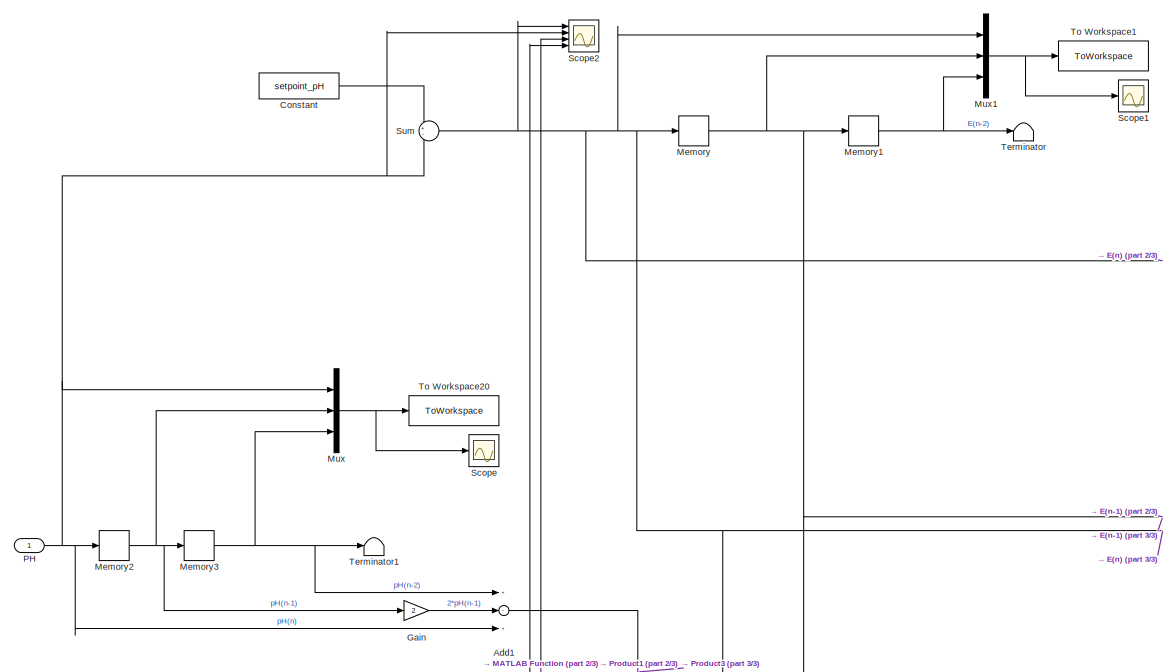
[diagram: PID pH - part 1/3, top left region]
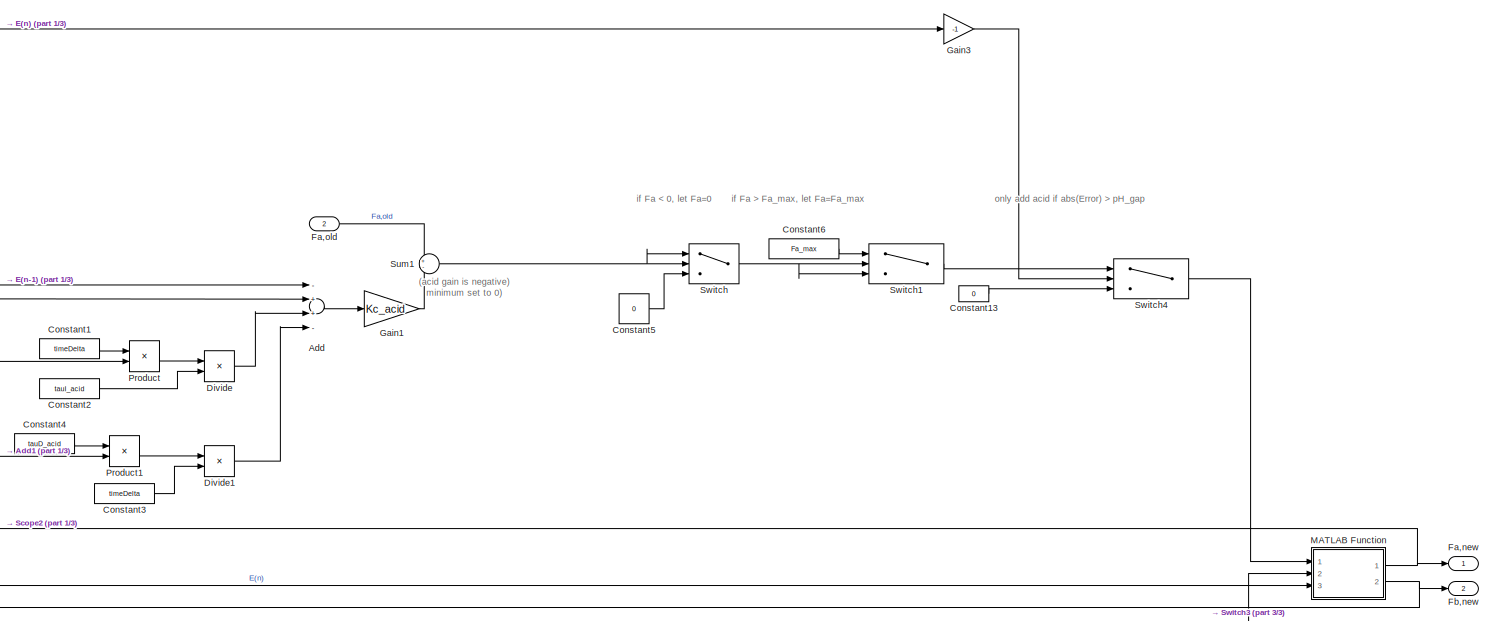
[diagram: PID pH - part 2/3, middle right region]
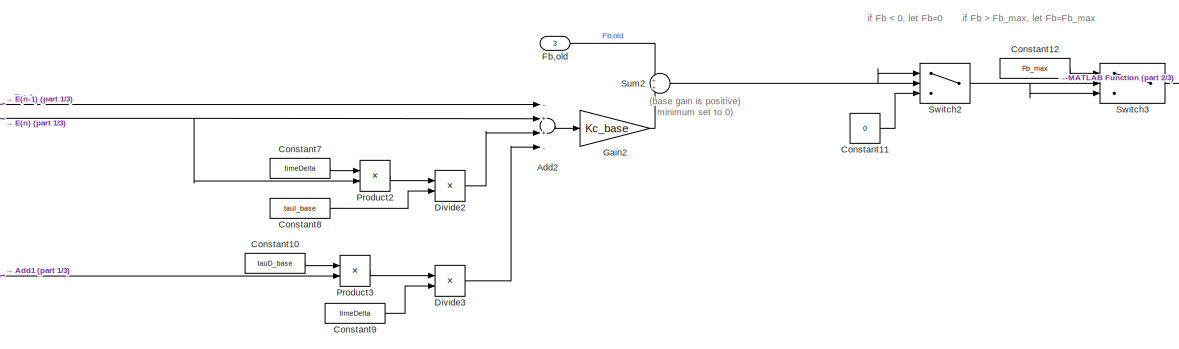
[diagram: PID pH - part 3/3, bottom center region]
BLOCK [SubSystem] PID pH
  Ports = [3, 2]
  RequestExecContextInheritance = off
BLOCK [Sum] PID pH/Add
  InputSameDT = off
  Inputs = -++-
  OutDataTypeStr = Inherit: Inherit via internal rule
  Ports = [4, 1]
  SaturateOnIntegerOverflow = off
BLOCK [Sum] PID pH/Add1
  InputSameDT = off
  Inputs = +-+
  OutDataTypeStr = Inherit: Inherit via internal rule
  Ports = [3, 1]
  SaturateOnIntegerOverflow = off
BLOCK [Sum] PID pH/Add2
  InputSameDT = off
  Inputs = -++-
  OutDataTypeStr = Inherit: Inherit via internal rule
  Ports = [4, 1]
  SaturateOnIntegerOverflow = off
BLOCK [Constant] PID pH/Constant
  Value = setpoint_pH
BLOCK [Constant] PID pH/Constant1
  Value = timeDelta
BLOCK [Constant] PID pH/Constant10
  Value = tauD_base
BLOCK [Constant] PID pH/Constant11
  Value = 0
BLOCK [Constant] PID pH/Constant12
  Value = Fb_max
BLOCK [Constant] PID pH/Constant13
  Value = 0
BLOCK [Constant] PID pH/Constant2
  Value = tauI_acid
BLOCK [Constant] PID pH/Constant3
  Value = timeDelta
BLOCK [Constant] PID pH/Constant4
  Value = tauD_acid
BLOCK [Constant] PID pH/Constant5
  Value = 0
BLOCK [Constant] PID pH/Constant6
  Value = Fa_max
BLOCK [Constant] PID pH/Constant7
  Value = timeDelta
BLOCK [Constant] PID pH/Constant8
  Value = tauI_base
BLOCK [Constant] PID pH/Constant9
  Value = timeDelta
BLOCK [Product] PID pH/Divide
  InputSameDT = off
  Inputs = */
  OutDataTypeStr = Inherit: Inherit via internal rule
  Ports = [2, 1]
  RndMeth = Floor
  SaturateOnIntegerOverflow = off
BLOCK [Product] PID pH/Divide1
  InputSameDT = off
  Inputs = */
  OutDataTypeStr = Inherit: Inherit via internal rule
  Ports = [2, 1]
  RndMeth = Floor
  SaturateOnIntegerOverflow = off
BLOCK [Product] PID pH/Divide2
  InputSameDT = off
  Inputs = */
  OutDataTypeStr = Inherit: Inherit via internal rule
  Ports = [2, 1]
  RndMeth = Floor
  SaturateOnIntegerOverflow = off
BLOCK [Product] PID pH/Divide3
  InputSameDT = off
  Inputs = */
  OutDataTypeStr = Inherit: Inherit via internal rule
  Ports = [2, 1]
  RndMeth = Floor
  SaturateOnIntegerOverflow = off
BLOCK [Outport] PID pH/Fa,new
  IconDisplay = Port number
BLOCK [Inport] PID pH/Fa,old
  IconDisplay = Port number
  Port = 2
BLOCK [Outport] PID pH/Fb,new
  IconDisplay = Port number
  Port = 2
BLOCK [Inport] PID pH/Fb,old
  IconDisplay = Port number
  Port = 3
BLOCK [Gain] PID pH/Gain
  Gain = 2
  OutDataTypeStr = Inherit: Inherit via internal rule
  ParamDataTypeStr = Inherit: Inherit via internal rule
  SaturateOnIntegerOverflow = off
BLOCK [Gain] PID pH/Gain1
  Gain = Kc_acid
  OutDataTypeStr = Inherit: Inherit via internal rule
  ParamDataTypeStr = Inherit: Inherit via internal rule
  SaturateOnIntegerOverflow = off
BLOCK [Gain] PID pH/Gain2
  Gain = Kc_base
  OutDataTypeStr = Inherit: Inherit via internal rule
  ParamDataTypeStr = Inherit: Inherit via internal rule
  SaturateOnIntegerOverflow = off
BLOCK [Gain] PID pH/Gain3
  Gain = -1
  OutDataTypeStr = Inherit: Inherit via internal rule
  ParamDataTypeStr = Inherit: Inherit via internal rule
  SaturateOnIntegerOverflow = off
BLOCK [SubSystem] PID pH/MATLAB Function
  ErrorFcn = Stateflow.Translate.translate
  PermitHierarchicalResolution = ExplicitOnly
  Ports = [3, 2]
  RequestExecContextInheritance = off
  SFBlockType = MATLAB Function
  TreatAsAtomicUnit = on
BLOCK [Demux] PID pH/MATLAB Function/ Demux 
  Outputs = 1
  Ports = [1, 1]
BLOCK [S-Function] PID pH/MATLAB Function/ SFunction 
  EnableBusSupport = on
  FunctionName = sf_sfun
  PortCounts = [3 3]
  Ports = [3, 3]
  SFcnIsStateOwnerBlock = off
  SFunctionDeploymentMode = off
  Tag = Stateflow S-Function 1
BLOCK [Terminator] PID pH/MATLAB Function/ Terminator 
BLOCK [Inport] PID pH/MATLAB Function/E
  IconDisplay = Port number
  Port = 3
BLOCK [Inport] PID pH/MATLAB Function/fa
  IconDisplay = Port number
BLOCK [Outport] PID pH/MATLAB Function/fanew
  IconDisplay = Port number
BLOCK [Inport] PID pH/MATLAB Function/fb
  IconDisplay = Port number
  Port = 2
BLOCK [Outport] PID pH/MATLAB Function/fbnew
  IconDisplay = Port number
  Port = 2
BLOCK [Memory] PID pH/Memory
BLOCK [Memory] PID pH/Memory1
BLOCK [Memory] PID pH/Memory2
  InitialCondition = pH_init
BLOCK [Memory] PID pH/Memory3
  InitialCondition = pH_init
BLOCK [Mux] PID pH/Mux
  DisplayOption = bar
  Inputs = 3
  Ports = [3, 1]
BLOCK [Mux] PID pH/Mux1
  DisplayOption = bar
  Inputs = 3
  Ports = [3, 1]
BLOCK [Inport] PID pH/PH
  IconDisplay = Port number
BLOCK [Product] PID pH/Product
  InputSameDT = off
  OutDataTypeStr = Inherit: Inherit via internal rule
  Ports = [2, 1]
  RndMeth = Floor
  SaturateOnIntegerOverflow = off
BLOCK [Product] PID pH/Product1
  InputSameDT = off
  OutDataTypeStr = Inherit: Inherit via internal rule
  Ports = [2, 1]
  RndMeth = Floor
  SaturateOnIntegerOverflow = off
BLOCK [Product] PID pH/Product2
  InputSameDT = off
  OutDataTypeStr = Inherit: Inherit via internal rule
  Ports = [2, 1]
  RndMeth = Floor
  SaturateOnIntegerOverflow = off
BLOCK [Product] PID pH/Product3
  InputSameDT = off
  OutDataTypeStr = Inherit: Inherit via internal rule
  Ports = [2, 1]
  RndMeth = Floor
  SaturateOnIntegerOverflow = off
BLOCK [Scope] PID pH/Scope
  Floating = off
  NumInputPorts = 1
  Ports = [1]
  ScopeSpecificationString = Simulink.scopes.TimeScopeBlockCfg('CurrentConfiguration', extmgr.ConfigurationSet(extmgr.Configuration('Core','General UI',true),extmgr.Configuration('Core','Source UI',true),extmgr.Configuration('Sources','WiredSimulink',true,'DataLoggingVariableName','ScopeData2'),extmgr.Configuration('Visuals','Time Domain',true,'SerializedDisplays',{struct('MinYLimReal','297.97217','MaxYLimReal','298.03936','Y...<+1437ch>
BLOCK [Scope] PID pH/Scope1
  Floating = off
  NumInputPorts = 1
  Ports = [1]
  ScopeSpecificationString = Simulink.scopes.TimeScopeBlockCfg('CurrentConfiguration', extmgr.ConfigurationSet(extmgr.Configuration('Core','General UI',true),extmgr.Configuration('Core','Source UI',true),extmgr.Configuration('Sources','WiredSimulink',true,'DataLoggingVariableName','ScopeData3'),extmgr.Configuration('Visuals','Time Domain',true,'SerializedDisplays',{struct('MinYLimReal','297.97217','MaxYLimReal','298.03936','Y...<+1437ch>
BLOCK [Scope] PID pH/Scope2
  Floating = off
  NumInputPorts = 4
  Ports = [4]
  ScopeSpecificationString = Simulink.scopes.TimeScopeBlockCfg('CurrentConfiguration', extmgr.ConfigurationSet(extmgr.Configuration('Core','General UI',true),extmgr.Configuration('Core','Source UI',true),extmgr.Configuration('Sources','WiredSimulink',true,'DataLoggingVariableName','ScopeData1'),extmgr.Configuration('Visuals','Time Domain',true,'SerializedDisplays',{struct('MinYLimReal','-0.08357','MaxYLimReal','0.04795','YLab...<+3493ch>
BLOCK [Sum] PID pH/Sum
  IconShape = round
  InputSameDT = off
  Inputs = +-
  OutDataTypeStr = Inherit: Inherit via internal rule
  Ports = [2, 1]
  SaturateOnIntegerOverflow = off
BLOCK [Sum] PID pH/Sum1
  IconShape = round
  InputSameDT = off
  Inputs = +-
  OutDataTypeStr = Inherit: Inherit via internal rule
  Ports = [2, 1]
  SaturateOnIntegerOverflow = off
BLOCK [Sum] PID pH/Sum2
  IconShape = round
  InputSameDT = off
  OutDataTypeStr = Inherit: Inherit via internal rule
  Ports = [2, 1]
  SaturateOnIntegerOverflow = off
BLOCK [Switch] PID pH/Switch
  Criteria = u2 > Threshold
  InputSameDT = off
  SaturateOnIntegerOverflow = off
BLOCK [Switch] PID pH/Switch1
  Criteria = u2 > Threshold
  InputSameDT = off
  SaturateOnIntegerOverflow = off
  Threshold = Fa_max
BLOCK [Switch] PID pH/Switch2
  Criteria = u2 > Threshold
  InputSameDT = off
  SaturateOnIntegerOverflow = off
BLOCK [Switch] PID pH/Switch3
  Criteria = u2 > Threshold
  InputSameDT = off
  SaturateOnIntegerOverflow = off
  Threshold = Fb_max
BLOCK [Switch] PID pH/Switch4
  Criteria = u2 > Threshold
  InputSameDT = off
  SaturateOnIntegerOverflow = off
  Threshold = setpointGap_pH
BLOCK [Terminator] PID pH/Terminator
BLOCK [Terminator] PID pH/Terminator1
BLOCK [ToWorkspace] PID pH/To Workspace1
  FixptAsFi = on
  MaxDataPoints = inf
  Ports = [1]
  SampleTime = -1
  SaveFormat = Timeseries
  VariableName = errorStorePH
BLOCK [ToWorkspace] PID pH/To Workspace20
  FixptAsFi = on
  MaxDataPoints = inf
  Ports = [1]
  SampleTime = -1
  SaveFormat = Timeseries
  VariableName = phStore
BLOCK [SubSystem] Penicillin Production
  Ports = [11, 2]
  RequestExecContextInheritance = off
BLOCK [Inport] Penicillin Production/CL
  IconDisplay = Port number
  Port = 6
BLOCK [Display] Penicillin Production/Display
  Decimation = 1
  Ports = [1]
BLOCK [Display] Penicillin Production/Display1
  Decimation = 1
  Ports = [1]
BLOCK [Product] Penicillin Production/Divide
  InputSameDT = off
  Inputs = */
  OutDataTypeStr = Inherit: Inherit via internal rule
  Ports = [2, 1]
  RndMeth = Floor
  SaturateOnIntegerOverflow = off
BLOCK [Product] Penicillin Production/Divide1
  InputSameDT = off
  Inputs = */
  OutDataTypeStr = Inherit: Inherit via internal rule
  Ports = [2, 1]
  RndMeth = Floor
  SaturateOnIntegerOverflow = off
BLOCK [Product] Penicillin Production/Divide2
  InputSameDT = off
  Inputs = */
  OutDataTypeStr = Inherit: Inherit via internal rule
  Ports = [2, 1]
  RndMeth = Floor
  SaturateOnIntegerOverflow = off
BLOCK [Product] Penicillin Production/Divide3
  InputSameDT = off
  Inputs = */
  OutDataTypeStr = Inherit: Inherit via internal rule
  Ports = [2, 1]
  RndMeth = Floor
  SaturateOnIntegerOverflow = off
BLOCK [Integrator] Penicillin Production/Integrator
  InitialCondition = P_init
  Ports = [1, 1]
BLOCK [Inport] Penicillin Production/K
  IconDisplay = Port number
BLOCK [Inport] Penicillin Production/KI
  IconDisplay = Port number
  Port = 10
BLOCK [Inport] Penicillin Production/Kop
  IconDisplay = Port number
  Port = 7
BLOCK [Inport] Penicillin Production/Kp
  IconDisplay = Port number
  Port = 9
BLOCK [Outport] Penicillin Production/P
  IconDisplay = Port number
BLOCK [Math] Penicillin Production/Power
  Operator = pow
  Ports = [2, 1]
  SignedPower = off
BLOCK [Product] Penicillin Production/Product
  InputSameDT = off
  OutDataTypeStr = Inherit: Inherit via internal rule
  Ports = [2, 1]
  RndMeth = Floor
  SaturateOnIntegerOverflow = off
BLOCK [Product] Penicillin Production/Product1
  InputSameDT = off
  OutDataTypeStr = Inherit: Inherit via internal rule
  Ports = [2, 1]
  RndMeth = Floor
  SaturateOnIntegerOverflow = off
BLOCK [Product] Penicillin Production/Product2
  InputSameDT = off
  OutDataTypeStr = Inherit: Inherit via internal rule
  Ports = [2, 1]
  RndMeth = Floor
  SaturateOnIntegerOverflow = off
BLOCK [Product] Penicillin Production/Product3
  InputSameDT = off
  Inputs = 3
  OutDataTypeStr = Inherit: Inherit via internal rule
  Ports = [3, 1]
  RndMeth = Floor
  SaturateOnIntegerOverflow = off
BLOCK [Product] Penicillin Production/Product4
  InputSameDT = off
  OutDataTypeStr = Inherit: Inherit via internal rule
  Ports = [2, 1]
  RndMeth = Floor
  SaturateOnIntegerOverflow = off
BLOCK [Inport] Penicillin Production/S
  IconDisplay = Port number
  Port = 8
BLOCK [Math] Penicillin Production/Square
  Operator = square
  Ports = [1, 1]
  SignedPower = off
BLOCK [Sum] Penicillin Production/Subtract
  InputSameDT = off
  Inputs = --+
  OutDataTypeStr = Inherit: Inherit via internal rule
  Ports = [3, 1]
  SaturateOnIntegerOverflow = off
BLOCK [Sum] Penicillin Production/Sum
  IconShape = round
  InputSameDT = off
  Inputs = +++
  OutDataTypeStr = Inherit: Inherit via internal rule
  Ports = [3, 1]
  SaturateOnIntegerOverflow = off
BLOCK [Sum] Penicillin Production/Sum1
  IconShape = round
  InputSameDT = off
  Inputs = |++
  OutDataTypeStr = Inherit: Inherit via internal rule
  Ports = [2, 1]
  SaturateOnIntegerOverflow = off
BLOCK [Inport] Penicillin Production/V
  IconDisplay = Port number
  Port = 3
BLOCK [Inport] Penicillin Production/X
  IconDisplay = Port number
  Port = 4
BLOCK [Inport] Penicillin Production/dV//dt
  IconDisplay = Port number
  Port = 2
BLOCK [Inport] Penicillin Production/mu_p
  IconDisplay = Port number
  Port = 5
BLOCK [Outport] Penicillin Production/mu_pp
  IconDisplay = Port number
  Port = 2
BLOCK [Inport] Penicillin Production/p
  IconDisplay = Port number
  Port = 11
BLOCK [RelationalOperator] Relational Operator
  InputSameDT = off
  OutDataTypeStr = boolean
  Ports = [2, 1]
  RndMeth = Simplest
BLOCK [Scope] Scope
  Floating = off
  NumInputPorts = 3
  Ports = [3]
  ScopeSpecificationString = Simulink.scopes.TimeScopeBlockCfg('CurrentConfiguration', extmgr.ConfigurationSet(extmgr.Configuration('Core','General UI',true),extmgr.Configuration('Core','Source UI',true),extmgr.Configuration('Sources','WiredSimulink',true,'DataLoggingVariableName','ScopeData1'),extmgr.Configuration('Visuals','Time Domain',true,'SerializedDisplays',{struct('MinYLimReal','44.72306','MaxYLimReal','44.80979','YLa...<+2780ch>
BLOCK [Scope] Scope1
  Floating = off
  NumInputPorts = 1
  Ports = [1]
  ScopeSpecificationString = Simulink.scopes.TimeScopeBlockCfg('CurrentConfiguration', extmgr.ConfigurationSet(extmgr.Configuration('Core','General UI',true),extmgr.Configuration('Core','Source UI',true),extmgr.Configuration('Sources','WiredSimulink',true,'DataLoggingVariableName','ScopeData1'),extmgr.Configuration('Visuals','Time Domain',true,'SerializedDisplays',{struct('MinYLimReal','-1.86885','MaxYLimReal','16.87432','YLa...<+1444ch>
BLOCK [Scope] Scope10
  Floating = off
  NumInputPorts = 1
  Ports = [1]
  ScopeSpecificationString = Simulink.scopes.TimeScopeBlockCfg('CurrentConfiguration', extmgr.ConfigurationSet(extmgr.Configuration('Core','General UI',true),extmgr.Configuration('Core','Source UI',true),extmgr.Configuration('Sources','WiredSimulink',true,'DataLoggingVariableName','ScopeData10'),extmgr.Configuration('Visuals','Time Domain',true,'SerializedDisplays',{struct('MinYLimReal','-1.45451','MaxYLimReal','14.09057','YL...<+1409ch>
BLOCK [Scope] Scope11
  Floating = off
  NumInputPorts = 1
  Ports = [1]
  ScopeSpecificationString = Simulink.scopes.TimeScopeBlockCfg('CurrentConfiguration', extmgr.ConfigurationSet(extmgr.Configuration('Core','General UI',true),extmgr.Configuration('Core','Source UI',true),extmgr.Configuration('Sources','WiredSimulink',true,'DataLoggingVariableName','ScopeData11'),extmgr.Configuration('Visuals','Time Domain',true,'SerializedDisplays',{struct('MinYLimReal','-0.0129','MaxYLimReal','0.11467','YLab...<+1406ch>
BLOCK [Scope] Scope12
  Floating = off
  NumInputPorts = 1
  Ports = [1]
  ScopeSpecificationString = Simulink.scopes.TimeScopeBlockCfg('CurrentConfiguration', extmgr.ConfigurationSet(extmgr.Configuration('Core','General UI',true),extmgr.Configuration('Core','Source UI',true),extmgr.Configuration('Sources','WiredSimulink',true,'DataLoggingVariableName','ScopeData1'),extmgr.Configuration('Visuals','Time Domain',true,'SerializedDisplays',{struct('MinYLimReal','124.12649','MaxYLimReal','127.74108','Y...<+1499ch>
BLOCK [Scope] Scope13
  Floating = off
  NumInputPorts = 1
  Ports = [1]
  ScopeSpecificationString = Simulink.scopes.TimeScopeBlockCfg('CurrentConfiguration', extmgr.ConfigurationSet(extmgr.Configuration('Core','General UI',true),extmgr.Configuration('Core','Source UI',true),extmgr.Configuration('Sources','WiredSimulink',true,'DataLoggingVariableName','ScopeData4'),extmgr.Configuration('Visuals','Time Domain',true,'SerializedDisplays',{struct('MinYLimReal','4.95205','MaxYLimReal','5.08356','YLabe...<+1398ch>
BLOCK [Scope] Scope14
  Floating = off
  NumInputPorts = 1
  Ports = [1]
  ScopeSpecificationString = Simulink.scopes.TimeScopeBlockCfg('CurrentConfiguration', extmgr.ConfigurationSet(extmgr.Configuration('Core','General UI',true),extmgr.Configuration('Core','Source UI',true),extmgr.Configuration('Sources','WiredSimulink',true,'DataLoggingVariableName','ScopeData2'),extmgr.Configuration('Visuals','Time Domain',true,'SerializedDisplays',{struct('MinYLimReal','-0.0129','MaxYLimReal','0.11467','YLabe...<+1405ch>
BLOCK [Scope] Scope15
  Floating = off
  NumInputPorts = 1
  Ports = [1]
  ScopeSpecificationString = Simulink.scopes.TimeScopeBlockCfg('CurrentConfiguration', extmgr.ConfigurationSet(extmgr.Configuration('Core','General UI',true),extmgr.Configuration('Core','Source UI',true),extmgr.Configuration('Sources','WiredSimulink',true,'DataLoggingVariableName','ScopeData1'),extmgr.Configuration('Visuals','Time Domain',true,'SerializedDisplays',{struct('MinYLimReal','-5.38708','MaxYLimReal','48.48417','YLa...<+1462ch>
BLOCK [Scope] Scope16
  Floating = off
  NumInputPorts = 2
  Ports = [2]
  ScopeSpecificationString = Simulink.scopes.TimeScopeBlockCfg('CurrentConfiguration', extmgr.ConfigurationSet(extmgr.Configuration('Core','General UI',true),extmgr.Configuration('Core','Source UI',true),extmgr.Configuration('Sources','WiredSimulink',true,'DataLoggingVariableName','ScopeData2'),extmgr.Configuration('Visuals','Time Domain',true,'SerializedDisplays',{struct('MinYLimReal','-0.00451','MaxYLimReal','0.04059','YLab...<+2115ch>
BLOCK [Scope] Scope17
  Floating = off
  NumInputPorts = 1
  Ports = [1]
  ScopeSpecificationString = Simulink.scopes.TimeScopeBlockCfg('CurrentConfiguration', extmgr.ConfigurationSet(extmgr.Configuration('Core','General UI',true),extmgr.Configuration('Core','Source UI',true),extmgr.Configuration('Sources','WiredSimulink',true,'DataLoggingVariableName','ScopeData1'),extmgr.Configuration('Visuals','Time Domain',true,'SerializedDisplays',{struct('MinYLimReal','-5.38708','MaxYLimReal','48.48417','YLa...<+1462ch>
BLOCK [Scope] Scope18
  Floating = off
  NumInputPorts = 3
  Ports = [3]
  ScopeSpecificationString = Simulink.scopes.TimeScopeBlockCfg('CurrentConfiguration', extmgr.ConfigurationSet(extmgr.Configuration('Core','General UI',true),extmgr.Configuration('Core','Source UI',true),extmgr.Configuration('Sources','WiredSimulink',true,'DataLoggingVariableName','ScopeData4'),extmgr.Configuration('Visuals','Time Domain',true,'SerializedDisplays',{struct('MinYLimReal','-0.0000004','MaxYLimReal','0.0000033','...<+2811ch>
BLOCK [Scope] Scope19
  Floating = off
  NumInputPorts = 1
  Ports = [1]
  ScopeSpecificationString = Simulink.scopes.TimeScopeBlockCfg('CurrentConfiguration', extmgr.ConfigurationSet(extmgr.Configuration('Core','General UI',true),extmgr.Configuration('Core','Source UI',true),extmgr.Configuration('Sources','WiredSimulink',true,'DataLoggingVariableName','ScopeData5'),extmgr.Configuration('Visuals','Time Domain',true,'SerializedDisplays',{struct('MinYLimReal','-0.03029','MaxYLimReal','0.02261','YLab...<+1409ch>
BLOCK [Scope] Scope2
  Floating = off
  NumInputPorts = 2
  Ports = [2]
  ScopeSpecificationString = Simulink.scopes.TimeScopeBlockCfg('CurrentConfiguration', extmgr.ConfigurationSet(extmgr.Configuration('Core','General UI',true),extmgr.Configuration('Core','Source UI',true),extmgr.Configuration('Sources','WiredSimulink',true,'DataLoggingVariableName','ScopeData2'),extmgr.Configuration('Visuals','Time Domain',true,'SerializedDisplays',{struct('MinYLimReal','1.01634','MaxYLimReal','1.19252','YLabe...<+1512ch>
BLOCK [Scope] Scope20
  Floating = off
  NumInputPorts = 8
  Ports = [8]
  ScopeSpecificationString = Simulink.scopes.TimeScopeBlockCfg('CurrentConfiguration', extmgr.ConfigurationSet(extmgr.Configuration('Core','General UI',true),extmgr.Configuration('Core','Source UI',true),extmgr.Configuration('Sources','WiredSimulink',true,'DataLoggingVariableName','ScopeData1'),extmgr.Configuration('Visuals','Time Domain',true,'SerializedDisplays',{struct('MinYLimReal','-1.95861','MaxYLimReal','17.67663','YLa...<+6397ch>
BLOCK [Scope] Scope21
  Floating = off
  NumInputPorts = 1
  Ports = [1]
  ScopeSpecificationString = Simulink.scopes.TimeScopeBlockCfg('CurrentConfiguration', extmgr.ConfigurationSet(extmgr.Configuration('Core','General UI',true),extmgr.Configuration('Core','Source UI',true),extmgr.Configuration('Sources','WiredSimulink',true,'DataLoggingVariableName','ScopeData2'),extmgr.Configuration('Visuals','Time Domain',true,'SerializedDisplays',{struct('MinYLimReal','1.05402','MaxYLimReal','1.17178','YLabe...<+1464ch>
BLOCK [Scope] Scope22
  Floating = off
  NumInputPorts = 4
  Ports = [4]
  ScopeSpecificationString = Simulink.scopes.TimeScopeBlockCfg('CurrentConfiguration', extmgr.ConfigurationSet(extmgr.Configuration('Core','General UI',true),extmgr.Configuration('Core','Source UI',true),extmgr.Configuration('Sources','WiredSimulink',true,'DataLoggingVariableName','ScopeData2'),extmgr.Configuration('Visuals','Time Domain',true,'SerializedDisplays',{struct('MinYLimReal','295.97006','MaxYLimReal','296.02529','Y...<+2802ch>
BLOCK [Scope] Scope23
  Floating = off
  NumInputPorts = 4
  Ports = [4]
  ScopeSpecificationString = Simulink.scopes.TimeScopeBlockCfg('CurrentConfiguration', extmgr.ConfigurationSet(extmgr.Configuration('Core','General UI',true),extmgr.Configuration('Core','Source UI',true),extmgr.Configuration('Sources','WiredSimulink',true,'DataLoggingVariableName','ScopeData3'),extmgr.Configuration('Visuals','Time Domain',true,'SerializedDisplays',{struct('MinYLimReal','-0.00002','MaxYLimReal','0.00015','YLab...<+2768ch>
BLOCK [Scope] Scope3
  Floating = off
  NumInputPorts = 1
  Ports = [1]
  ScopeSpecificationString = Simulink.scopes.TimeScopeBlockCfg('CurrentConfiguration', extmgr.ConfigurationSet(extmgr.Configuration('Core','General UI',true),extmgr.Configuration('Core','Source UI',true),extmgr.Configuration('Sources','WiredSimulink',true,'DataLoggingVariableName','ScopeData3'),extmgr.Configuration('Visuals','Time Domain',true,'SerializedDisplays',{struct('MinYLimReal','-0.17667','MaxYLimReal','1.49366','YLab...<+1457ch>
BLOCK [Scope] Scope4
  Floating = off
  NumInputPorts = 1
  Ports = [1]
  ScopeSpecificationString = Simulink.scopes.TimeScopeBlockCfg('CurrentConfiguration', extmgr.ConfigurationSet(extmgr.Configuration('Core','General UI',true),extmgr.Configuration('Core','Source UI',true),extmgr.Configuration('Sources','WiredSimulink',true,'DataLoggingVariableName','ScopeData4'),extmgr.Configuration('Visuals','Time Domain',true,'SerializedDisplays',{struct('MinYLimReal','-0.00053','MaxYLimReal','0.00513','YLab...<+1441ch>
BLOCK [Scope] Scope5
  Floating = off
  NumInputPorts = 1
  Ports = [1]
  ScopeSpecificationString = Simulink.scopes.TimeScopeBlockCfg('CurrentConfiguration', extmgr.ConfigurationSet(extmgr.Configuration('Core','General UI',true),extmgr.Configuration('Core','Source UI',true),extmgr.Configuration('Sources','WiredSimulink',true,'DataLoggingVariableName','ScopeData5'),extmgr.Configuration('Visuals','Time Domain',true),extmgr.Configuration('Tools','Plot Navigation',true),extmgr.Configuration('Tools',...<+40ch>
BLOCK [Scope] Scope6
  Floating = off
  NumInputPorts = 2
  Ports = [2]
  ScopeSpecificationString = Simulink.scopes.TimeScopeBlockCfg('CurrentConfiguration', extmgr.ConfigurationSet(extmgr.Configuration('Core','General UI',true),extmgr.Configuration('Core','Source UI',true),extmgr.Configuration('Sources','WiredSimulink',true,'DataLoggingVariableName','ScopeData6'),extmgr.Configuration('Visuals','Time Domain',true,'SerializedDisplays',{struct('MinYLimReal','0.30151','MaxYLimReal','2.20881','YLabe...<+1379ch>
BLOCK [Scope] Scope7
  Floating = off
  NumInputPorts = 1
  Ports = [1]
  ScopeSpecificationString = Simulink.scopes.TimeScopeBlockCfg('CurrentConfiguration', extmgr.ConfigurationSet(extmgr.Configuration('Core','General UI',true),extmgr.Configuration('Core','Source UI',true),extmgr.Configuration('Sources','WiredSimulink',true,'DataLoggingVariableName','ScopeData7'),extmgr.Configuration('Visuals','Time Domain',true,'SerializedDisplays',{struct('MinYLimReal','-9303.64314','MaxYLimReal','83732.78826...<+1441ch>
BLOCK [Scope] Scope8
  Floating = off
  NumInputPorts = 1
  Ports = [1]
  ScopeSpecificationString = Simulink.scopes.TimeScopeBlockCfg('CurrentConfiguration', extmgr.ConfigurationSet(extmgr.Configuration('Core','General UI',true),extmgr.Configuration('Core','Source UI',true),extmgr.Configuration('Sources','WiredSimulink',true,'DataLoggingVariableName','ScopeData3'),extmgr.Configuration('Visuals','Time Domain',true,'SerializedDisplays',{struct('MinYLimReal','297.9495','MaxYLimReal','298.11438','YL...<+1440ch>
BLOCK [Scope] Scope9
  Floating = off
  NumInputPorts = 1
  Ports = [1]
  ScopeSpecificationString = Simulink.scopes.TimeScopeBlockCfg('CurrentConfiguration', extmgr.ConfigurationSet(extmgr.Configuration('Core','General UI',true),extmgr.Configuration('Core','Source UI',true),extmgr.Configuration('Sources','WiredSimulink',true,'DataLoggingVariableName','ScopeData9'),extmgr.Configuration('Visuals','Time Domain',true,'SerializedDisplays',{struct('MinYLimReal','98.16612','MaxYLimReal','105.51446','YL...<+1384ch>
BLOCK [Stop] Stop Simulation
BLOCK [SubSystem] Substrate Utilization
  Ports = [18, 3]
  RequestExecContextInheritance = off
BLOCK [Outport] Substrate Utilization/CL
  IconDisplay = Port number
  Port = 2
BLOCK [Inport] Substrate Utilization/CLsat
  IconDisplay = Port number
  Port = 13
BLOCK [SubSystem] Substrate Utilization/Calculate Kla
  Ports = [5, 1]
  RequestExecContextInheritance = off
BLOCK [Product] Substrate Utilization/Calculate Kla/Divide2
  InputSameDT = off
  Inputs = */
  OutDataTypeStr = Inherit: Inherit via internal rule
  Ports = [2, 1]
  RndMeth = Floor
  SaturateOnIntegerOverflow = off
BLOCK [Outport] Substrate Utilization/Calculate Kla/Kla
  IconDisplay = Port number
BLOCK [Math] Substrate Utilization/Calculate Kla/Power
  Operator = pow
  Ports = [2, 1]
  SignedPower = off
BLOCK [Product] Substrate Utilization/Calculate Kla/Product6
  InputSameDT = off
  Inputs = 3
  OutDataTypeStr = Inherit: Inherit via internal rule
  Ports = [3, 1]
  RndMeth = Floor
  SaturateOnIntegerOverflow = off
BLOCK [Inport] Substrate Utilization/Calculate Kla/Pw
  IconDisplay = Port number
  Port = 4
BLOCK [Sqrt] Substrate Utilization/Calculate Kla/Sqrt
BLOCK [Inport] Substrate Utilization/Calculate Kla/V
  IconDisplay = Port number
BLOCK [Inport] Substrate Utilization/Calculate Kla/alpha0
  IconDisplay = Port number
  Port = 2
BLOCK [Inport] Substrate Utilization/Calculate Kla/beta0
  IconDisplay = Port number
  Port = 5
BLOCK [Inport] Substrate Utilization/Calculate Kla/fg
  IconDisplay = Port number
  Port = 3
BLOCK [Inport] Substrate Utilization/F
  IconDisplay = Port number
  Port = 7
BLOCK [SubSystem] Substrate Utilization/Glucose
  Ports = [9, 1]
  RequestExecContextInheritance = off
BLOCK [Product] Substrate Utilization/Glucose/Divide
  InputSameDT = off
  Inputs = */
  OutDataTypeStr = Inherit: Inherit via internal rule
  Ports = [2, 1]
  RndMeth = Floor
  SaturateOnIntegerOverflow = off
BLOCK [Product] Substrate Utilization/Glucose/Divide1
  InputSameDT = off
  Inputs = */
  OutDataTypeStr = Inherit: Inherit via internal rule
  Ports = [2, 1]
  RndMeth = Floor
  SaturateOnIntegerOverflow = off
BLOCK [Product] Substrate Utilization/Glucose/Divide2
  InputSameDT = off
  Inputs = */
  OutDataTypeStr = Inherit: Inherit via internal rule
  Ports = [2, 1]
  RndMeth = Floor
  SaturateOnIntegerOverflow = off
BLOCK [Product] Substrate Utilization/Glucose/Divide3
  InputSameDT = off
  Inputs = */
  OutDataTypeStr = Inherit: Inherit via internal rule
  Ports = [2, 1]
  RndMeth = Floor
  SaturateOnIntegerOverflow = off
BLOCK [Inport] Substrate Utilization/Glucose/Fsf
  IconDisplay = Port number
  Port = 7
BLOCK [Integrator] Substrate Utilization/Glucose/Integrator
  InitialCondition = S_init
  Ports = [1, 1]
BLOCK [Mux] Substrate Utilization/Glucose/Mux
  DisplayOption = bar
  Inputs = 2
  Ports = [2, 1]
BLOCK [Product] Substrate Utilization/Glucose/Product
  InputSameDT = off
  OutDataTypeStr = Inherit: Inherit via internal rule
  Ports = [2, 1]
  RndMeth = Floor
  SaturateOnIntegerOverflow = off
BLOCK [Product] Substrate Utilization/Glucose/Product1
  InputSameDT = off
  OutDataTypeStr = Inherit: Inherit via internal rule
  Ports = [2, 1]
  RndMeth = Floor
  SaturateOnIntegerOverflow = off
BLOCK [Product] Substrate Utilization/Glucose/Product2
  InputSameDT = off
  OutDataTypeStr = Inherit: Inherit via internal rule
  Ports = [2, 1]
  RndMeth = Floor
  SaturateOnIntegerOverflow = off
BLOCK [Product] Substrate Utilization/Glucose/Product3
  InputSameDT = off
  OutDataTypeStr = Inherit: Inherit via internal rule
  Ports = [2, 1]
  RndMeth = Floor
  SaturateOnIntegerOverflow = off
BLOCK [Outport] Substrate Utilization/Glucose/S
  IconDisplay = Port number
BLOCK [Scope] Substrate Utilization/Glucose/Scope
  Floating = off
  NumInputPorts = 1
  Ports = [1]
  ScopeSpecificationString = Simulink.scopes.TimeScopeBlockCfg('CurrentConfiguration', extmgr.ConfigurationSet(extmgr.Configuration('Core','General UI',true),extmgr.Configuration('Core','Source UI',true),extmgr.Configuration('Sources','WiredSimulink',true,'DataLoggingVariableName','ScopeData2'),extmgr.Configuration('Visuals','Time Domain',true,'SerializedDisplays',{struct('MinYLimReal','-2.42677','MaxYLimReal','17.13887','YLa...<+1405ch>
BLOCK [Sum] Substrate Utilization/Glucose/Subtract
  InputSameDT = off
  Inputs = ---+-
  OutDataTypeStr = Inherit: Inherit via internal rule
  Ports = [5, 1]
  SaturateOnIntegerOverflow = off
BLOCK [Inport] Substrate Utilization/Glucose/V
  IconDisplay = Port number
  Port = 8
BLOCK [Inport] Substrate Utilization/Glucose/X
  IconDisplay = Port number
  Port = 3
BLOCK [Inport] Substrate Utilization/Glucose/Yps
  IconDisplay = Port number
  Port = 5
BLOCK [Inport] Substrate Utilization/Glucose/Yxs
  IconDisplay = Port number
  Port = 2
BLOCK [Inport] Substrate Utilization/Glucose/dV//dt
  IconDisplay = Port number
  Port = 9
BLOCK [Inport] Substrate Utilization/Glucose/mu
  IconDisplay = Port number
BLOCK [Inport] Substrate Utilization/Glucose/mu_pp
  IconDisplay = Port number
  Port = 4
BLOCK [Inport] Substrate Utilization/Glucose/mx
  IconDisplay = Port number
  Port = 6
BLOCK [Outport] Substrate Utilization/Kla
  IconDisplay = Port number
  Port = 3
BLOCK [Product] Substrate Utilization/Product
  InputSameDT = off
  OutDataTypeStr = Inherit: Inherit via internal rule
  Ports = [2, 1]
  RndMeth = Floor
  SaturateOnIntegerOverflow = off
BLOCK [Inport] Substrate Utilization/Pw
  IconDisplay = Port number
  Port = 17
BLOCK [Outport] Substrate Utilization/S
  IconDisplay = Port number
BLOCK [Scope] Substrate Utilization/Scope
  Floating = off
  NumInputPorts = 4
  Ports = [4]
  ScopeSpecificationString = Simulink.scopes.TimeScopeBlockCfg('CurrentConfiguration', extmgr.ConfigurationSet(extmgr.Configuration('Core','General UI',true),extmgr.Configuration('Core','Source UI',true),extmgr.Configuration('Sources','WiredSimulink',true,'DataLoggingVariableName','ScopeData3'),extmgr.Configuration('Visuals','Time Domain',true,'SerializedDisplays',{struct('MinYLimReal','-0.00849','MaxYLimReal','0.11878','YLab...<+3889ch>
BLOCK [Inport] Substrate Utilization/V
  IconDisplay = Port number
  Port = 8
BLOCK [Inport] Substrate Utilization/X
  IconDisplay = Port number
  Port = 2
BLOCK [Inport] Substrate Utilization/Ypo
  IconDisplay = Port number
  Port = 11
BLOCK [Inport] Substrate Utilization/Yps
  IconDisplay = Port number
  Port = 5
BLOCK [Inport] Substrate Utilization/Yxo
  IconDisplay = Port number
  Port = 10
BLOCK [Inport] Substrate Utilization/Yxs
  IconDisplay = Port number
  Port = 3
BLOCK [Inport] Substrate Utilization/alpha0
  IconDisplay = Port number
  Port = 14
BLOCK [Inport] Substrate Utilization/beta0
  IconDisplay = Port number
  Port = 16
BLOCK [Inport] Substrate Utilization/dV//dt
  IconDisplay = Port number
  Port = 9
BLOCK [SubSystem] Substrate Utilization/dissolved oxygen
  Ports = [10, 2]
  RequestExecContextInheritance = off
BLOCK [Outport] Substrate Utilization/dissolved oxygen/CL
  IconDisplay = Port number
BLOCK [Inport] Substrate Utilization/dissolved oxygen/CLsat
  IconDisplay = Port number
  Port = 10
BLOCK [Product] Substrate Utilization/dissolved oxygen/Divide
  InputSameDT = off
  Inputs = */
  OutDataTypeStr = Inherit: Inherit via internal rule
  Ports = [2, 1]
  RndMeth = Floor
  SaturateOnIntegerOverflow = off
BLOCK [Product] Substrate Utilization/dissolved oxygen/Divide1
  InputSameDT = off
  Inputs = */
  OutDataTypeStr = Inherit: Inherit via internal rule
  Ports = [2, 1]
  RndMeth = Floor
  SaturateOnIntegerOverflow = off
BLOCK [Integrator] Substrate Utilization/dissolved oxygen/Integrator
  InitialCondition = CL_init
  Ports = [1, 1]
BLOCK [Inport] Substrate Utilization/dissolved oxygen/Kla
  IconDisplay = Port number
  Port = 9
BLOCK [Product] Substrate Utilization/dissolved oxygen/Product
  InputSameDT = off
  OutDataTypeStr = Inherit: Inherit via internal rule
  Ports = [2, 1]
  RndMeth = Floor
  SaturateOnIntegerOverflow = off
BLOCK [Product] Substrate Utilization/dissolved oxygen/Product1
  InputSameDT = off
  OutDataTypeStr = Inherit: Inherit via internal rule
  Ports = [2, 1]
  RndMeth = Floor
  SaturateOnIntegerOverflow = off
BLOCK [Product] Substrate Utilization/dissolved oxygen/Product2
  InputSameDT = off
  OutDataTypeStr = Inherit: Inherit via internal rule
  Ports = [2, 1]
  RndMeth = Floor
  SaturateOnIntegerOverflow = off
BLOCK [Product] Substrate Utilization/dissolved oxygen/Product3
  InputSameDT = off
  OutDataTypeStr = Inherit: Inherit via internal rule
  Ports = [2, 1]
  RndMeth = Floor
  SaturateOnIntegerOverflow = off
BLOCK [Product] Substrate Utilization/dissolved oxygen/Product4
  InputSameDT = off
  OutDataTypeStr = Inherit: Inherit via internal rule
  Ports = [2, 1]
  RndMeth = Floor
  SaturateOnIntegerOverflow = off
BLOCK [Product] Substrate Utilization/dissolved oxygen/Product5
  InputSameDT = off
  OutDataTypeStr = Inherit: Inherit via internal rule
  Ports = [2, 1]
  RndMeth = Floor
  SaturateOnIntegerOverflow = off
BLOCK [Product] Substrate Utilization/dissolved oxygen/Reciprocal
  InputSameDT = off
  Inputs = /
  OutDataTypeStr = Inherit: Inherit via internal rule
  Ports = [1, 1]
  RndMeth = Floor
  SaturateOnIntegerOverflow = off
BLOCK [Sum] Substrate Utilization/dissolved oxygen/Subtract
  InputSameDT = off
  Inputs = ---+-
  OutDataTypeStr = Inherit: Inherit via internal rule
  Ports = [5, 1]
  SaturateOnIntegerOverflow = off
BLOCK [Sum] Substrate Utilization/dissolved oxygen/Subtract1
  InputSameDT = off
  Inputs = +-
  OutDataTypeStr = Inherit: Inherit via internal rule
  Ports = [2, 1]
  SaturateOnIntegerOverflow = off
BLOCK [Inport] Substrate Utilization/dissolved oxygen/V
  IconDisplay = Port number
  Port = 4
BLOCK [Inport] Substrate Utilization/dissolved oxygen/X
  IconDisplay = Port number
  Port = 2
BLOCK [Inport] Substrate Utilization/dissolved oxygen/Ypo
  IconDisplay = Port number
  Port = 7
BLOCK [Inport] Substrate Utilization/dissolved oxygen/Yxo
  IconDisplay = Port number
  Port = 6
BLOCK [Outport] Substrate Utilization/dissolved oxygen/dCL
  IconDisplay = Port number
  Port = 2
BLOCK [Inport] Substrate Utilization/dissolved oxygen/dV//dt
  IconDisplay = Port number
  Port = 5
BLOCK [Inport] Substrate Utilization/dissolved oxygen/mo
  IconDisplay = Port number
  Port = 8
BLOCK [Inport] Substrate Utilization/dissolved oxygen/mu
  IconDisplay = Port number
BLOCK [Inport] Substrate Utilization/dissolved oxygen/mu_pp
  IconDisplay = Port number
  Port = 3
BLOCK [Inport] Substrate Utilization/fg
  IconDisplay = Port number
  Port = 15
BLOCK [Inport] Substrate Utilization/mo
  IconDisplay = Port number
  Port = 12
BLOCK [Inport] Substrate Utilization/mu
  IconDisplay = Port number
BLOCK [Inport] Substrate Utilization/mu_pp
  IconDisplay = Port number
  Port = 4
BLOCK [Inport] Substrate Utilization/mx
  IconDisplay = Port number
  Port = 6
BLOCK [Inport] Substrate Utilization/sf
  IconDisplay = Port number
  Port = 18
BLOCK [Switch] Switch1
  Criteria = u2 > Threshold
  InputSameDT = off
  SaturateOnIntegerOverflow = off
  Threshold = S_threshold
BLOCK [ToWorkspace] To Workspace
  FixptAsFi = on
  MaxDataPoints = inf
  Ports = [1]
  SampleTime = -1
  SaveFormat = Timeseries
  VariableName = Pw
BLOCK [ToWorkspace] To Workspace1
  FixptAsFi = on
  MaxDataPoints = inf
  Ports = [1]
  SampleTime = -1
  SaveFormat = Timeseries
  VariableName = S
BLOCK [ToWorkspace] To Workspace10
  FixptAsFi = on
  MaxDataPoints = inf
  Ports = [1]
  SampleTime = -1
  SaveFormat = Timeseries
  VariableName = Qrxn
BLOCK [ToWorkspace] To Workspace11
  FixptAsFi = on
  MaxDataPoints = inf
  Ports = [1]
  SampleTime = -1
  SaveFormat = Timeseries
  VariableName = T
BLOCK [ToWorkspace] To Workspace12
  FixptAsFi = on
  MaxDataPoints = inf
  Ports = [1]
  SampleTime = -1
  SaveFormat = Timeseries
  VariableName = pH
BLOCK [ToWorkspace] To Workspace13
  FixptAsFi = on
  MaxDataPoints = inf
  Ports = [1]
  SampleTime = -1
  SaveFormat = Timeseries
  VariableName = Kla
BLOCK [ToWorkspace] To Workspace14
  FixptAsFi = on
  MaxDataPoints = inf
  Ports = [1]
  SampleTime = -1
  SaveFormat = Timeseries
  VariableName = dX
BLOCK [ToWorkspace] To Workspace15
  FixptAsFi = on
  MaxDataPoints = inf
  Ports = [1]
  SampleTime = -1
  SaveFormat = Timeseries
  VariableName = Fc
BLOCK [ToWorkspace] To Workspace16
  FixptAsFi = on
  MaxDataPoints = inf
  Ports = [1]
  SampleTime = -1
  SaveFormat = Timeseries
  VariableName = F
BLOCK [ToWorkspace] To Workspace17
  FixptAsFi = on
  MaxDataPoints = inf
  Ports = [1]
  SampleTime = -1
  SaveFormat = Timeseries
  VariableName = Fb
BLOCK [ToWorkspace] To Workspace18
  FixptAsFi = on
  MaxDataPoints = inf
  Ports = [1]
  SampleTime = -1
  SaveFormat = Timeseries
  VariableName = Fa
BLOCK [ToWorkspace] To Workspace19
  FixptAsFi = on
  MaxDataPoints = inf
  Ports = [1]
  SampleTime = -1
  SaveFormat = Timeseries
  VariableName = dV
BLOCK [ToWorkspace] To Workspace2
  FixptAsFi = on
  MaxDataPoints = inf
  Ports = [1]
  SampleTime = -1
  SaveFormat = Timeseries
  VariableName = CL
BLOCK [ToWorkspace] To Workspace20
  FixptAsFi = on
  MaxDataPoints = inf
  Ports = [1]
  SampleTime = -1
  SaveFormat = Timeseries
  VariableName = fg
BLOCK [ToWorkspace] To Workspace21
  FixptAsFi = on
  MaxDataPoints = inf
  Ports = [1]
  SampleTime = -1
  SaveFormat = Timeseries
  VariableName = Tf
BLOCK [ToWorkspace] To Workspace22
  FixptAsFi = on
  MaxDataPoints = inf
  Ports = [1]
  SampleTime = -1
  SaveFormat = Timeseries
  VariableName = CL_measured
BLOCK [ToWorkspace] To Workspace23
  FixptAsFi = on
  MaxDataPoints = inf
  Ports = [1]
  SampleTime = -1
  SaveFormat = Timeseries
  VariableName = CO2_measured
BLOCK [ToWorkspace] To Workspace3
  FixptAsFi = on
  MaxDataPoints = inf
  Ports = [1]
  SampleTime = -1
  SaveFormat = Timeseries
  VariableName = P
BLOCK [ToWorkspace] To Workspace4
  FixptAsFi = on
  MaxDataPoints = inf
  Ports = [1]
  SampleTime = -1
  SaveFormat = Timeseries
  VariableName = mu_pp
BLOCK [ToWorkspace] To Workspace5
  FixptAsFi = on
  MaxDataPoints = inf
  Ports = [1]
  SampleTime = -1
  SaveFormat = Timeseries
  VariableName = mu
BLOCK [ToWorkspace] To Workspace6
  FixptAsFi = on
  MaxDataPoints = inf
  Ports = [1]
  SampleTime = -1
  SaveFormat = Timeseries
  VariableName = X
BLOCK [ToWorkspace] To Workspace7
  FixptAsFi = on
  MaxDataPoints = inf
  Ports = [1]
  SampleTime = -1
  SaveFormat = Timeseries
  VariableName = H
BLOCK [ToWorkspace] To Workspace8
  FixptAsFi = on
  MaxDataPoints = inf
  Ports = [1]
  SampleTime = -1
  SaveFormat = Timeseries
  VariableName = V
BLOCK [ToWorkspace] To Workspace9
  FixptAsFi = on
  MaxDataPoints = inf
  Ports = [1]
  SampleTime = -1
  SaveFormat = Timeseries
  VariableName = CO2
BLOCK [SubSystem] Volume Change
  Ports = [7, 2]
  RequestExecContextInheritance = off
BLOCK [Constant] Volume Change/Constant
BLOCK [Product] Volume Change/Divide
  InputSameDT = off
  Inputs = */
  OutDataTypeStr = Inherit: Inherit via internal rule
  Ports = [2, 1]
  RndMeth = Floor
  SaturateOnIntegerOverflow = off
BLOCK [Math] Volume Change/Exp
  Ports = [1, 1]
  SignedPower = off
BLOCK [Inport] Volume Change/F
  IconDisplay = Port number
BLOCK [Inport] Volume Change/Fa
  IconDisplay = Port number
  Port = 2
BLOCK [Inport] Volume Change/Fb
  IconDisplay = Port number
  Port = 7
BLOCK [Gain] Volume Change/Gain
  Gain = 5
  OutDataTypeStr = Inherit: Inherit via internal rule
  ParamDataTypeStr = Inherit: Inherit via internal rule
  SaturateOnIntegerOverflow = off
BLOCK [Integrator] Volume Change/Integrator
  InitialCondition = V_init
  Ports = [1, 1]
BLOCK [Product] Volume Change/Product
  InputSameDT = off
  Inputs = 3
  OutDataTypeStr = Inherit: Inherit via internal rule
  Ports = [3, 1]
  RndMeth = Floor
  SaturateOnIntegerOverflow = off
BLOCK [Sum] Volume Change/Subtract
  InputSameDT = off
  Inputs = ++-
  OutDataTypeStr = Inherit: Inherit via internal rule
  Ports = [3, 1]
  SaturateOnIntegerOverflow = off
BLOCK [Sum] Volume Change/Subtract1
  InputSameDT = off
  Inputs = +-
  OutDataTypeStr = Inherit: Inherit via internal rule
  Ports = [2, 1]
  SaturateOnIntegerOverflow = off
BLOCK [Sum] Volume Change/Subtract2
  InputSameDT = off
  Inputs = +-
  OutDataTypeStr = Inherit: Inherit via internal rule
  Ports = [2, 1]
  SaturateOnIntegerOverflow = off
BLOCK [Sum] Volume Change/Subtract3
  InputSameDT = off
  Inputs = -+
  OutDataTypeStr = Inherit: Inherit via internal rule
  Ports = [2, 1]
  SaturateOnIntegerOverflow = off
BLOCK [Sum] Volume Change/Sum
  IconShape = round
  InputSameDT = off
  Inputs = |++
  OutDataTypeStr = Inherit: Inherit via internal rule
  Ports = [2, 1]
  SaturateOnIntegerOverflow = off
BLOCK [Inport] Volume Change/T
  IconDisplay = Port number
  Port = 4
BLOCK [Inport] Volume Change/T0
  IconDisplay = Port number
  Port = 5
BLOCK [Inport] Volume Change/Tv
  IconDisplay = Port number
  Port = 6
BLOCK [Outport] Volume Change/V
  IconDisplay = Port number
BLOCK [Outport] Volume Change/dV//dt
  IconDisplay = Port number
  Port = 2
BLOCK [Inport] Volume Change/lambda0
  IconDisplay = Port number
  Port = 3
BLOCK [SubSystem] noise
  ErrorFcn = Stateflow.Translate.translate
  PermitHierarchicalResolution = ExplicitOnly
  Ports = [4, 1]
  RequestExecContextInheritance = off
  SFBlockType = MATLAB Function
  TreatAsAtomicUnit = on
BLOCK [Demux] noise/ Demux 
  Outputs = 1
  Ports = [1, 1]
BLOCK [S-Function] noise/ SFunction 
  EnableBusSupport = on
  FunctionName = sf_sfun
  PortCounts = [4 2]
  Ports = [4, 2]
  SFcnIsStateOwnerBlock = off
  SFunctionDeploymentMode = off
  Tag = Stateflow S-Function 2
BLOCK [Terminator] noise/ Terminator 
BLOCK [Inport] noise/mean
  IconDisplay = Port number
  Port = 2
BLOCK [Inport] noise/r
  IconDisplay = Port number
  Port = 4
BLOCK [Inport] noise/std
  IconDisplay = Port number
  Port = 3
BLOCK [Inport] noise/u
  IconDisplay = Port number
BLOCK [Outport] noise/y
  IconDisplay = Port number
BLOCK [SubSystem] noise1
  ErrorFcn = Stateflow.Translate.translate
  PermitHierarchicalResolution = ExplicitOnly
  Ports = [4, 1]
  RequestExecContextInheritance = off
  SFBlockType = MATLAB Function
  TreatAsAtomicUnit = on
BLOCK [Demux] noise1/ Demux 
  Outputs = 1
  Ports = [1, 1]
BLOCK [S-Function] noise1/ SFunction 
  EnableBusSupport = on
  FunctionName = sf_sfun
  PortCounts = [4 2]
  Ports = [4, 2]
  SFcnIsStateOwnerBlock = off
  SFunctionDeploymentMode = off
  Tag = Stateflow S-Function 4
BLOCK [Terminator] noise1/ Terminator 
BLOCK [Inport] noise1/mean
  IconDisplay = Port number
  Port = 2
BLOCK [Inport] noise1/r
  IconDisplay = Port number
  Port = 4
BLOCK [Inport] noise1/std
  IconDisplay = Port number
  Port = 3
BLOCK [Inport] noise1/u
  IconDisplay = Port number
BLOCK [Outport] noise1/y
  IconDisplay = Port number
BLOCK [SubSystem] normal dist
  ErrorFcn = Stateflow.Translate.translate
  PermitHierarchicalResolution = ExplicitOnly
  Ports = [0, 1]
  RequestExecContextInheritance = off
  SFBlockType = MATLAB Function
  TreatAsAtomicUnit = on
BLOCK [Demux] normal dist/ Demux 
  Outputs = 1
  Ports = [1, 1]
BLOCK [Ground] normal dist/ Ground 
BLOCK [S-Function] normal dist/ SFunction 
  EnableBusSupport = on
  FunctionName = sf_sfun
  PortCounts = [1 2]
  Ports = [1, 2]
  SFcnIsStateOwnerBlock = off
  SFunctionDeploymentMode = off
  Tag = Stateflow S-Function 3
BLOCK [Terminator] normal dist/ Terminator 
BLOCK [Outport] normal dist/y
  IconDisplay = Port number
BLOCK [SubSystem] normal dist1
  ErrorFcn = Stateflow.Translate.translate
  PermitHierarchicalResolution = ExplicitOnly
  Ports = [0, 1]
  RequestExecContextInheritance = off
  SFBlockType = MATLAB Function
  TreatAsAtomicUnit = on
BLOCK [Demux] normal dist1/ Demux 
  Outputs = 1
  Ports = [1, 1]
BLOCK [Ground] normal dist1/ Ground 
BLOCK [S-Function] normal dist1/ SFunction 
  EnableBusSupport = on
  FunctionName = sf_sfun
  PortCounts = [1 2]
  Ports = [1, 2]
  SFcnIsStateOwnerBlock = off
  SFunctionDeploymentMode = off
  Tag = Stateflow S-Function 5
BLOCK [Terminator] normal dist1/ Terminator 
BLOCK [Outport] normal dist1/y
  IconDisplay = Port number
ANNOTATION Effect of pH: (as per China, not Cinar)
ANNOTATION PID Temperature: (cooling water gain is negative) minimum set to 0.001 (avoid crashing simulator)
ANNOTATION PID Temperature: Velocity Form of PID controller
ANNOTATION PID pH: (acid gain is negative) minimum set to 0)
ANNOTATION PID pH: (base gain is positive) minimum set to 0)
ANNOTATION PID pH: if Fa < 0, let Fa=0
ANNOTATION PID pH: if Fa > Fa_max, let Fa=Fa_max
ANNOTATION PID pH: if Fb < 0, let Fb=0
ANNOTATION PID pH: if Fb > Fb_max, let Fb=Fb_max
ANNOTATION PID pH: only add acid if abs(Error) > pH_gap
ANNOTATION Volume Change: NOTE: THE ACTUAL FLOSS is 5(T-T0)/Tv - T0 (in Cinar)
LINE  :1 -> Substrate Utilization:10
LINE Biomass Growth/Add2:1 -> Biomass Growth/Divide3:2
NET Biomass Growth/CL:1 -> Biomass Growth/Divide1:1, Biomass Growth/Sum:1
LINE Biomass Growth/Constant:1 -> Biomass Growth/Add2:1
LINE Biomass Growth/Divide1:1 -> Biomass Growth/Product2:3
LINE Biomass Growth/Divide2:1 -> Biomass Growth/Product2:2
LINE Biomass Growth/Divide3:1 -> Biomass Growth/Product2:1
LINE Biomass Growth/Divide4:1 -> Biomass Growth/Add2:2
LINE Biomass Growth/Divide5:1 -> Biomass Growth/Add2:3
LINE Biomass Growth/Divide:1 -> Biomass Growth/Product1:1
LINE Biomass Growth/Ed:1 -> Biomass Growth/generalized expression #1:2
LINE Biomass Growth/Eg:1 -> Biomass Growth/generalized expression #2:2
NET Biomass Growth/H:1 -> Biomass Growth/Divide4:2, Biomass Growth/Divide5:1
NET Biomass Growth/Integrator:1 -> Biomass Growth/Divide:1, Biomass Growth/Product3:1, Biomass Growth/Product4:1, Biomass Growth/Product:2, Biomass Growth/X:1
LINE Biomass Growth/K1:1 -> Biomass Growth/Divide4:1
LINE Biomass Growth/K2:1 -> Biomass Growth/Divide5:2
LINE Biomass Growth/Kox:1 -> Biomass Growth/Product4:2
LINE Biomass Growth/Kx:1 -> Biomass Growth/Product3:2
LINE Biomass Growth/Product1:1 -> Biomass Growth/Subtract:2
LINE Biomass Growth/Product2:1 -> Biomass Growth/Subtract1:1
LINE Biomass Growth/Product3:1 -> Biomass Growth/Sum1:2
LINE Biomass Growth/Product4:1 -> Biomass Growth/Sum:2
NET Biomass Growth/Product:1 -> Biomass Growth/Subtract:1, Biomass Growth/mu*X:1
NET Biomass Growth/R:1 -> Biomass Growth/generalized expression #1:3, Biomass Growth/generalized expression #2:3
NET Biomass Growth/S:1 -> Biomass Growth/Divide2:1, Biomass Growth/Sum1:1
NET Biomass Growth/Subtract1:1 -> Biomass Growth/Product:1, Biomass Growth/mu:1
NET Biomass Growth/Subtract:1 -> Biomass Growth/Integrator:1, Biomass Growth/dX//dt:1
LINE Biomass Growth/Sum1:1 -> Biomass Growth/Divide2:2
LINE Biomass Growth/Sum:1 -> Biomass Growth/Divide1:2
NET Biomass Growth/T:1 -> Biomass Growth/generalized expression #1:4, Biomass Growth/generalized expression #2:4
LINE Biomass Growth/V:1 -> Biomass Growth/Divide:2
LINE Biomass Growth/dV//dt:1 -> Biomass Growth/Product1:2
LINE Biomass Growth/generalized expression #1/Constant:1 -> Biomass Growth/generalized expression #1/Product4:3
LINE Biomass Growth/generalized expression #1/Divide1:1 -> Biomass Growth/generalized expression #1/Exp:1
LINE Biomass Growth/generalized expression #1/E:1 -> Biomass Growth/generalized expression #1/Divide1:1
LINE Biomass Growth/generalized expression #1/Exp:1 -> Biomass Growth/generalized expression #1/Product3:2
LINE Biomass Growth/generalized expression #1/Product3:1 -> Biomass Growth/generalized expression #1/k*exp(-E//RT):1
LINE Biomass Growth/generalized expression #1/Product4:1 -> Biomass Growth/generalized expression #1/Divide1:2
LINE Biomass Growth/generalized expression #1/R:1 -> Biomass Growth/generalized expression #1/Product4:1
LINE Biomass Growth/generalized expression #1/T:1 -> Biomass Growth/generalized expression #1/Product4:2
LINE Biomass Growth/generalized expression #1/k:1 -> Biomass Growth/generalized expression #1/Product3:1
LINE Biomass Growth/generalized expression #1:1 -> Biomass Growth/Subtract1:2
LINE Biomass Growth/generalized expression #2/Constant:1 -> Biomass Growth/generalized expression #2/Product4:3
LINE Biomass Growth/generalized expression #2/Divide1:1 -> Biomass Growth/generalized expression #2/Exp:1
LINE Biomass Growth/generalized expression #2/E:1 -> Biomass Growth/generalized expression #2/Divide1:1
LINE Biomass Growth/generalized expression #2/Exp:1 -> Biomass Growth/generalized expression #2/Product3:2
LINE Biomass Growth/generalized expression #2/Product3:1 -> Biomass Growth/generalized expression #2/k*exp(-E//RT):1
LINE Biomass Growth/generalized expression #2/Product4:1 -> Biomass Growth/generalized expression #2/Divide1:2
LINE Biomass Growth/generalized expression #2/R:1 -> Biomass Growth/generalized expression #2/Product4:1
LINE Biomass Growth/generalized expression #2/T:1 -> Biomass Growth/generalized expression #2/Product4:2
LINE Biomass Growth/generalized expression #2/k:1 -> Biomass Growth/generalized expression #2/Product3:1
LINE Biomass Growth/generalized expression #2:1 -> Biomass Growth/Product2:4
LINE Biomass Growth/kd:1 -> Biomass Growth/generalized expression #1:1
LINE Biomass Growth/kg:1 -> Biomass Growth/generalized expression #2:1
LINE Biomass Growth/mu_x:1 -> Biomass Growth/Divide3:1
NET Biomass Growth:1 -> CO2 evolution:3, Display10:1, Effect of pH:3, Heat of Reaction:5, Penicillin Production:4, Scope10:1, Scope20:4, Substrate Utilization:2, To Workspace6:1
LINE Biomass Growth:2 -> Effect of pH:2
NET Biomass Growth:3 -> Display11:1, Scope11:1, Substrate Utilization:1, To Workspace5:1
NET Biomass Growth:4 -> CO2 evolution:5, Display14:1, Heat of Reaction:3, Scope14:1, To Workspace14:1
LINE CO2 evolution/Integrator:1 -> CO2 evolution/CO2:1
LINE CO2 evolution/Product1:1 -> CO2 evolution/Sum:3
LINE CO2 evolution/Product:1 -> CO2 evolution/Sum:2
NET CO2 evolution/Sum:1 -> CO2 evolution/Integrator:1, CO2 evolution/To Workspace11:1
LINE CO2 evolution/X:1 -> CO2 evolution/Product:2
LINE CO2 evolution/alpha1:1 -> CO2 evolution/Product1:1
LINE CO2 evolution/alpha2:1 -> CO2 evolution/Product:1
LINE CO2 evolution/alpha3:1 -> CO2 evolution/Sum:1
LINE CO2 evolution/dX//dt:1 -> CO2 evolution/Product1:2
NET CO2 evolution:1 -> Display6:1, Scope6:1, To Workspace9:1, noise1:1
LINE Constant10:1 -> noise1:2
LINE Constant11:1 -> Biomass Growth:3
LINE Constant12:1 -> Biomass Growth:4
LINE Constant13:1 -> Biomass Growth:5
LINE Constant14:1 -> Biomass Growth:7
LINE Constant15:1 -> Biomass Growth:8
LINE Constant16:1 -> Biomass Growth:10
LINE Constant17:1 -> Biomass Growth:12
LINE Constant18:1 -> Biomass Growth:13
LINE Constant19:1 -> Biomass Growth:14
LINE Constant1:1 -> Substrate Utilization:3
LINE Constant20:1 -> Biomass Growth:16
LINE Constant21:1 -> Penicillin Production:1
LINE Constant22:1 -> Penicillin Production:5
LINE Constant23:1 -> Penicillin Production:11
LINE Constant24:1 -> Penicillin Production:7
LINE Constant25:1 -> Penicillin Production:9
LINE Constant26:1 -> Penicillin Production:10
LINE Constant27:1 -> Effect of pH:6
LINE Constant28:1 -> Volume Change:3
LINE Constant29:1 -> Volume Change:5
NET Constant2:1 -> PID Temp switch:2, Scope22:4
LINE Constant30:1 -> Volume Change:6
LINE Constant31:1 -> Effect of pH:1
LINE Constant32:1 -> noise1:3
LINE Constant33:1 -> Relational Operator:2
LINE Constant35:1 -> Effect of pH:9
LINE Constant36:1 -> CO2 evolution:1
LINE Constant37:1 -> CO2 evolution:2
LINE Constant38:1 -> CO2 evolution:4
LINE Constant39:1 -> Heat of Reaction:1
LINE Constant3:1 -> Substrate Utilization:5
LINE Constant40:1 -> Heat of Reaction:2
LINE Constant41:1 -> Switch1:1
LINE Constant43:1 -> Heat of Reaction:13
LINE Constant44:1 -> Substrate Utilization:18
LINE Constant45:1 -> Heat of Reaction:12
LINE Constant46:1 -> Heat of Reaction:8
LINE Constant48:1 -> Heat of Reaction:10
LINE Constant49:1 -> Heat of Reaction:11
LINE Constant4:1 -> Substrate Utilization:6
LINE Constant50:1 -> Substrate Utilization:11
LINE Constant51:1 -> Substrate Utilization:12
LINE Constant52:1 -> Heat of Reaction:14
LINE Constant53:1 -> Heat of Reaction:15
NET Constant5:1 -> PID [H] switch:2, Scope23:4
LINE Constant6:1 -> Substrate Utilization:13
LINE Constant7:1 -> Substrate Utilization:14
LINE Constant8:1 -> noise:3
LINE Constant9:1 -> Substrate Utilization:16
LINE Constant:1 -> noise:2
NET Effect of pH/Add:1 -> Effect of pH/Integrator:1, Effect of pH/To Workspace11:1
LINE Effect of pH/Cab:1 -> Effect of pH/Product6:1
LINE Effect of pH/Constant1:1 -> Effect of pH/Divide2:1
LINE Effect of pH/Constant:1 -> Effect of pH/Sum1:2
NET Effect of pH/Divide1:1 -> Effect of pH/Gain1:1, Effect of pH/Product3:1, Effect of pH/Product3:2
LINE Effect of pH/Divide2:1 -> Effect of pH/Subtract3:1
LINE Effect of pH/Divide:1 -> Effect of pH/Subtract:2
LINE Effect of pH/F:1 -> Effect of pH/Product1:2
NET Effect of pH/Fa:1 -> Effect of pH/Sum3:1, Effect of pH/Sum4:1
NET Effect of pH/Fb:1 -> Effect of pH/Sum3:2, Effect of pH/Sum4:2
LINE Effect of pH/Gain1:1 -> Effect of pH/Sum:1
LINE Effect of pH/Gain:1 -> Effect of pH/Subtract1:1
NET Effect of pH/Integrator:1 -> Effect of pH/Divide2:2, Effect of pH/H:1, Effect of pH/Subtract1:2, Effect of pH/Subtract3:2
LINE Effect of pH/Product1:1 -> Effect of pH/Divide:1
LINE Effect of pH/Product2:1 -> Effect of pH/Add:1
LINE Effect of pH/Product3:1 -> Effect of pH/Sum1:1
LINE Effect of pH/Product4:1 -> Effect of pH/Sum2:1
LINE Effect of pH/Product5:1 -> Effect of pH/Subtract2:1
LINE Effect of pH/Product6:1 -> Effect of pH/Subtract2:2
LINE Effect of pH/Product7:1 -> Effect of pH/Product6:2
LINE Effect of pH/Product:1 -> Effect of pH/Add:2
LINE Effect of pH/Reciprocal:1 -> Effect of pH/Product2:2
LINE Effect of pH/Sqrt:1 -> Effect of pH/Sum:2
LINE Effect of pH/Subtract1:1 -> Effect of pH/Product2:1
LINE Effect of pH/Subtract2:1 -> Effect of pH/Divide1:1
LINE Effect of pH/Subtract3:1 -> Effect of pH/Product5:1
LINE Effect of pH/Subtract:1 -> Effect of pH/Product:2
LINE Effect of pH/Sum1:1 -> Effect of pH/Sqrt:1
LINE Effect of pH/Sum2:1 -> Effect of pH/Divide1:2
LINE Effect of pH/Sum3:1 -> Effect of pH/Product4:1
LINE Effect of pH/Sum4:1 -> Effect of pH/Product7:1
LINE Effect of pH/Sum:1 -> Effect of pH/Gain:1
NET Effect of pH/V:1 -> Effect of pH/Divide:2, Effect of pH/Product5:2, Effect of pH/Sum2:2
LINE Effect of pH/X:1 -> Effect of pH/Product1:1
LINE Effect of pH/gamma:1 -> Effect of pH/Product:1
LINE Effect of pH/mu*X:1 -> Effect of pH/Subtract:1
NET Effect of pH/timeDelta:1 -> Effect of pH/Product4:2, Effect of pH/Product7:2, Effect of pH/Reciprocal:1
LINE Effect of pH:1 -> PID [H] switch:1
NET From Workspace1:1 -> Scope:1, Substrate Utilization:17, To Workspace:1
NET From Workspace2:1 -> Scope:2, Substrate Utilization:15, To Workspace20:1
NET From Workspace3:1 -> Display20:1, Heat of Reaction:7, Scope17:1, Scope22:1, To Workspace21:1
LINE From Workspace:1 -> Switch1:3
NET Gain1:1 -> Display12:1, PID pH:1, Scope13:1, Scope18:3, Scope20:5, Scope23:3, To Workspace12:1
LINE Heat of Reaction(Cinar)/Add1:1 -> Heat of Reaction(Cinar)/Divide:2
LINE Heat of Reaction(Cinar)/Add:1 -> Heat of Reaction(Cinar)/Power:2
LINE Heat of Reaction(Cinar)/Constant1:1 -> Heat of Reaction(Cinar)/Product7:1
LINE Heat of Reaction(Cinar)/Constant:1 -> Heat of Reaction(Cinar)/Add:1
LINE Heat of Reaction(Cinar)/Divide1:1 -> Heat of Reaction(Cinar)/Add1:2
LINE Heat of Reaction(Cinar)/Divide:1 -> Heat of Reaction(Cinar)/Subtract3:2
LINE Heat of Reaction(Cinar)/F:1 -> Heat of Reaction(Cinar)/Product2:1
NET Heat of Reaction(Cinar)/Fc:1 -> Heat of Reaction(Cinar)/Add1:1, Heat of Reaction(Cinar)/Power1:1, Heat of Reaction(Cinar)/Power:1
NET Heat of Reaction(Cinar)/Integrator1:1 -> Heat of Reaction(Cinar)/Subtract2:2, Heat of Reaction(Cinar)/T:1
NET Heat of Reaction(Cinar)/Integrator:1 -> Heat of Reaction(Cinar)/Qrxn:1, Heat of Reaction(Cinar)/Subtract3:1
LINE Heat of Reaction(Cinar)/Power1:1 -> Heat of Reaction(Cinar)/Product6:1
LINE Heat of Reaction(Cinar)/Power:1 -> Heat of Reaction(Cinar)/Product5:2
LINE Heat of Reaction(Cinar)/Product1:1 -> Heat of Reaction(Cinar)/Subtract:2
LINE Heat of Reaction(Cinar)/Product2:1 -> Heat of Reaction(Cinar)/Subtract1:1
LINE Heat of Reaction(Cinar)/Product3:1 -> Heat of Reaction(Cinar)/Subtract1:2
LINE Heat of Reaction(Cinar)/Product4:1 -> Heat of Reaction(Cinar)/Reciprocal1:1
LINE Heat of Reaction(Cinar)/Product5:1 -> Heat of Reaction(Cinar)/Divide:1
LINE Heat of Reaction(Cinar)/Product6:1 -> Heat of Reaction(Cinar)/Divide1:1
LINE Heat of Reaction(Cinar)/Product7:1 -> Heat of Reaction(Cinar)/Divide1:2
LINE Heat of Reaction(Cinar)/Product:1 -> Heat of Reaction(Cinar)/Subtract:1
LINE Heat of Reaction(Cinar)/Reciprocal1:1 -> Heat of Reaction(Cinar)/Product3:1
LINE Heat of Reaction(Cinar)/Reciprocal:1 -> Heat of Reaction(Cinar)/Product2:3
LINE Heat of Reaction(Cinar)/Subtract1:1 -> Heat of Reaction(Cinar)/Integrator1:1
LINE Heat of Reaction(Cinar)/Subtract2:1 -> Heat of Reaction(Cinar)/Product2:2
LINE Heat of Reaction(Cinar)/Subtract3:1 -> Heat of Reaction(Cinar)/Product3:2
LINE Heat of Reaction(Cinar)/Subtract:1 -> Heat of Reaction(Cinar)/Integrator:1
LINE Heat of Reaction(Cinar)/Tf:1 -> Heat of Reaction(Cinar)/Subtract2:1
NET Heat of Reaction(Cinar)/V:1 -> Heat of Reaction(Cinar)/Product1:1, Heat of Reaction(Cinar)/Product4:1, Heat of Reaction(Cinar)/Product:3
LINE Heat of Reaction(Cinar)/X:1 -> Heat of Reaction(Cinar)/Product1:2
NET Heat of Reaction(Cinar)/a:1 -> Heat of Reaction(Cinar)/Product5:1, Heat of Reaction(Cinar)/Product6:2
NET Heat of Reaction(Cinar)/b:1 -> Heat of Reaction(Cinar)/Add:2, Heat of Reaction(Cinar)/Power1:2
LINE Heat of Reaction(Cinar)/dX//dt:1 -> Heat of Reaction(Cinar)/Product:2
LINE Heat of Reaction(Cinar)/rhoCp:1 -> Heat of Reaction(Cinar)/Product4:2
LINE Heat of Reaction(Cinar)/rho_cCp_c:1 -> Heat of Reaction(Cinar)/Product7:2
LINE Heat of Reaction(Cinar)/rq1:1 -> Heat of Reaction(Cinar)/Product:1
LINE Heat of Reaction(Cinar)/rq2:1 -> Heat of Reaction(Cinar)/Product1:3
LINE Heat of Reaction(Cinar)/sf:1 -> Heat of Reaction(Cinar)/Reciprocal:1
LINE Heat of Reaction/Add1:1 -> Heat of Reaction/Divide:2
LINE Heat of Reaction/Add2:1 -> Heat of Reaction/Product8:1
LINE Heat of Reaction/Add:1 -> Heat of Reaction/Power:2
LINE Heat of Reaction/Constant1:1 -> Heat of Reaction/Product7:1
LINE Heat of Reaction/Constant2:1 -> Heat of Reaction/Sum:2
LINE Heat of Reaction/Constant:1 -> Heat of Reaction/Add:1
LINE Heat of Reaction/Divide1:1 -> Heat of Reaction/Add1:2
LINE Heat of Reaction/Divide:1 -> Heat of Reaction/Subtract3:2
LINE Heat of Reaction/F:1 -> Heat of Reaction/Product2:1
NET Heat of Reaction/Fch:1 -> Heat of Reaction/Add1:1, Heat of Reaction/Power1:1, Heat of Reaction/Power:1
NET Heat of Reaction/Integrator1:1 -> Heat of Reaction/Add2:1, Heat of Reaction/Subtract2:2, Heat of Reaction/T:1
NET Heat of Reaction/Integrator:1 -> Heat of Reaction/Qrxn:1, Heat of Reaction/Subtract3:1
LINE Heat of Reaction/Power1:1 -> Heat of Reaction/Product6:1
LINE Heat of Reaction/Power:1 -> Heat of Reaction/Product5:2
LINE Heat of Reaction/Product10:1 -> Heat of Reaction/Add2:3
LINE Heat of Reaction/Product1:1 -> Heat of Reaction/Subtract:2
LINE Heat of Reaction/Product2:1 -> Heat of Reaction/Subtract1:1
LINE Heat of Reaction/Product3:1 -> Heat of Reaction/Subtract1:2
LINE Heat of Reaction/Product4:1 -> Heat of Reaction/Reciprocal1:1
LINE Heat of Reaction/Product5:1 -> Heat of Reaction/Product8:2
LINE Heat of Reaction/Product6:1 -> Heat of Reaction/Divide1:1
LINE Heat of Reaction/Product7:1 -> Heat of Reaction/Divide1:2
LINE Heat of Reaction/Product8:1 -> Heat of Reaction/Divide:1
LINE Heat of Reaction/Product9:1 -> Heat of Reaction/Add2:2
LINE Heat of Reaction/Product:1 -> Heat of Reaction/Subtract:1
LINE Heat of Reaction/Reciprocal1:1 -> Heat of Reaction/Product3:1
LINE Heat of Reaction/Reciprocal:1 -> Heat of Reaction/Product2:3
NET Heat of Reaction/Subtract1:1 -> Heat of Reaction/Integrator1:1, Heat of Reaction/To Workspace1:1
LINE Heat of Reaction/Subtract2:1 -> Heat of Reaction/Product2:2
LINE Heat of Reaction/Subtract3:1 -> Heat of Reaction/Product3:2
NET Heat of Reaction/Subtract:1 -> Heat of Reaction/Integrator:1, Heat of Reaction/To Workspace11:1
LINE Heat of Reaction/Sum:1 -> Heat of Reaction/Product10:2
LINE Heat of Reaction/Tc:1 -> Heat of Reaction/Product10:1
LINE Heat of Reaction/Tf:1 -> Heat of Reaction/Subtract2:1
LINE Heat of Reaction/Th:1 -> Heat of Reaction/Product9:2
NET Heat of Reaction/V:1 -> Heat of Reaction/Product1:1, Heat of Reaction/Product4:1, Heat of Reaction/Product:3, Heat of Reaction/Reciprocal:1
LINE Heat of Reaction/X:1 -> Heat of Reaction/Product1:2
NET Heat of Reaction/a:1 -> Heat of Reaction/Product5:1, Heat of Reaction/Product6:2
NET Heat of Reaction/b:1 -> Heat of Reaction/Add:2, Heat of Reaction/Power1:2
LINE Heat of Reaction/dX//dt:1 -> Heat of Reaction/Product:2
NET Heat of Reaction/q:1 -> Heat of Reaction/Product9:1, Heat of Reaction/Sum:1
LINE Heat of Reaction/rhoCp:1 -> Heat of Reaction/Product4:2
LINE Heat of Reaction/rho_cCp_c:1 -> Heat of Reaction/Product7:2
LINE Heat of Reaction/rq1:1 -> Heat of Reaction/Product:1
LINE Heat of Reaction/rq2:1 -> Heat of Reaction/Product1:3
NET Heat of Reaction:1 -> Display7:1, Scope20:6, Scope7:1, To Workspace10:1
LINE Heat of Reaction:2 -> PID Temp switch:1
LINE Log10:1 -> Gain1:1
LINE Memory1:1 -> PID pH:2
LINE Memory2:1 -> PID pH:3
LINE Memory:1 -> PID Temperature:2
NET PID Temp switch:1 -> Biomass Growth:6, Display8:1, PID Temperature:1, Scope22:3, Scope8:1, To Workspace11:1, Volume Change:4
LINE PID Temperature/Add1:1 -> PID Temperature/Product1:2
LINE PID Temperature/Add:1 -> PID Temperature/Gain1:1
LINE PID Temperature/Constant1:1 -> PID Temperature/Product:1
LINE PID Temperature/Constant2:1 -> PID Temperature/Divide:2
LINE PID Temperature/Constant3:1 -> PID Temperature/Divide1:2
LINE PID Temperature/Constant4:1 -> PID Temperature/Product1:1
LINE PID Temperature/Constant5:1 -> PID Temperature/Switch:3
LINE PID Temperature/Constant:1 -> PID Temperature/Sum:1
LINE PID Temperature/Divide1:1 -> PID Temperature/Add:4
LINE PID Temperature/Divide:1 -> PID Temperature/Add:3
LINE PID Temperature/Fc,old:1 -> PID Temperature/Sum1:1
LINE PID Temperature/Gain1:1 -> PID Temperature/Sum1:2
LINE PID Temperature/Gain:1 -> PID Temperature/Add1:2
NET PID Temperature/Memory1:1 -> PID Temperature/Mux1:3, PID Temperature/Terminator:1
NET PID Temperature/Memory2:1 -> PID Temperature/Gain:1, PID Temperature/Memory3:1, PID Temperature/Mux:2
NET PID Temperature/Memory3:1 -> PID Temperature/Add1:1, PID Temperature/Mux:3, PID Temperature/Terminator1:1
NET PID Temperature/Memory:1 -> PID Temperature/Add:1, PID Temperature/Memory1:1, PID Temperature/Mux1:2
NET PID Temperature/Mux1:1 -> PID Temperature/Scope1:1, PID Temperature/To Workspace1:1
NET PID Temperature/Mux:1 -> PID Temperature/Scope:1, PID Temperature/To Workspace20:1
LINE PID Temperature/Product1:1 -> PID Temperature/Divide1:1
LINE PID Temperature/Product:1 -> PID Temperature/Divide:1
NET PID Temperature/Sum1:1 -> PID Temperature/Switch:1, PID Temperature/Switch:2
NET PID Temperature/Sum:1 -> PID Temperature/Add:2, PID Temperature/Memory:1, PID Temperature/Mux1:1, PID Temperature/Product:2
LINE PID Temperature/Switch:1 -> PID Temperature/Fc,new:1
NET PID Temperature/T:1 -> PID Temperature/Add1:3, PID Temperature/Memory2:1, PID Temperature/Mux:1, PID Temperature/Sum:2
NET PID Temperature:1 -> Display15:1, Heat of Reaction:9, Memory:1, Scope15:1, Scope22:2, To Workspace15:1
NET PID [H] switch:1 -> Biomass Growth:15, Display5:1, Log10:1, Scope5:1, To Workspace7:1
NET PID pH/Add1:1 -> PID pH/Product1:2, PID pH/Product3:2
LINE PID pH/Add2:1 -> PID pH/Gain2:1
LINE PID pH/Add:1 -> PID pH/Gain1:1
LINE PID pH/Constant10:1 -> PID pH/Product3:1
LINE PID pH/Constant11:1 -> PID pH/Switch2:3
LINE PID pH/Constant12:1 -> PID pH/Switch3:1
LINE PID pH/Constant13:1 -> PID pH/Switch4:3
LINE PID pH/Constant1:1 -> PID pH/Product:1
LINE PID pH/Constant2:1 -> PID pH/Divide:2
LINE PID pH/Constant3:1 -> PID pH/Divide1:2
LINE PID pH/Constant4:1 -> PID pH/Product1:1
LINE PID pH/Constant5:1 -> PID pH/Switch:3
LINE PID pH/Constant6:1 -> PID pH/Switch1:1
LINE PID pH/Constant7:1 -> PID pH/Product2:1
LINE PID pH/Constant8:1 -> PID pH/Divide2:2
LINE PID pH/Constant9:1 -> PID pH/Divide3:2
LINE PID pH/Constant:1 -> PID pH/Sum:1
LINE PID pH/Divide1:1 -> PID pH/Add:4
LINE PID pH/Divide2:1 -> PID pH/Add2:3
LINE PID pH/Divide3:1 -> PID pH/Add2:4
LINE PID pH/Divide:1 -> PID pH/Add:3
LINE PID pH/Fa,old:1 -> PID pH/Sum1:1
LINE PID pH/Fb,old:1 -> PID pH/Sum2:1
LINE PID pH/Gain1:1 -> PID pH/Sum1:2
LINE PID pH/Gain2:1 -> PID pH/Sum2:2
LINE PID pH/Gain3:1 -> PID pH/Switch4:2
LINE PID pH/Gain:1 -> PID pH/Add1:2
NET PID pH/MATLAB Function:1 -> PID pH/Fa,new:1, PID pH/Scope2:3
NET PID pH/MATLAB Function:2 -> PID pH/Fb,new:1, PID pH/Scope2:4
NET PID pH/Memory1:1 -> PID pH/Mux1:3, PID pH/Terminator:1
NET PID pH/Memory2:1 -> PID pH/Gain:1, PID pH/Memory3:1, PID pH/Mux:2
NET PID pH/Memory3:1 -> PID pH/Add1:1, PID pH/Mux:3, PID pH/Terminator1:1
NET PID pH/Memory:1 -> PID pH/Add2:1, PID pH/Add:1, PID pH/Memory1:1, PID pH/Mux1:2
NET PID pH/Mux1:1 -> PID pH/Scope1:1, PID pH/To Workspace1:1
NET PID pH/Mux:1 -> PID pH/Scope:1, PID pH/To Workspace20:1
NET PID pH/PH:1 -> PID pH/Add1:3, PID pH/Memory2:1, PID pH/Mux:1, PID pH/Scope2:2, PID pH/Sum:2
LINE PID pH/Product1:1 -> PID pH/Divide1:1
LINE PID pH/Product2:1 -> PID pH/Divide2:1
LINE PID pH/Product3:1 -> PID pH/Divide3:1
LINE PID pH/Product:1 -> PID pH/Divide:1
NET PID pH/Sum1:1 -> PID pH/Switch:1, PID pH/Switch:2
NET PID pH/Sum2:1 -> PID pH/Switch2:1, PID pH/Switch2:2
NET PID pH/Sum:1 -> PID pH/Add2:2, PID pH/Add:2, PID pH/Gain3:1, PID pH/MATLAB Function:3, PID pH/Memory:1, PID pH/Mux1:1, PID pH/Product2:2, PID pH/Product:2, PID pH/Scope2:1
LINE PID pH/Switch1:1 -> PID pH/Switch4:1
NET PID pH/Switch2:1 -> PID pH/Switch3:2, PID pH/Switch3:3
LINE PID pH/Switch3:1 -> PID pH/MATLAB Function:2
LINE PID pH/Switch4:1 -> PID pH/MATLAB Function:1
NET PID pH/Switch:1 -> PID pH/Switch1:2, PID pH/Switch1:3
NET PID pH:1 -> Display18:1, Effect of pH:7, Memory1:1, Scope18:1, Scope23:2, To Workspace18:1, Volume Change:2
NET PID pH:2 -> Display17:1, Effect of pH:8, Memory2:1, Scope18:2, Scope23:1, To Workspace17:1, Volume Change:7
NET Penicillin Production/CL:1 -> Penicillin Production/Display:1, Penicillin Production/Power:1
LINE Penicillin Production/Divide1:1 -> Penicillin Production/Product3:3
LINE Penicillin Production/Divide2:1 -> Penicillin Production/Product3:2
LINE Penicillin Production/Divide3:1 -> Penicillin Production/Sum:3
LINE Penicillin Production/Divide:1 -> Penicillin Production/Product1:1
NET Penicillin Production/Integrator:1 -> Penicillin Production/Divide:1, Penicillin Production/P:1, Penicillin Production/Product:1
LINE Penicillin Production/K:1 -> Penicillin Production/Product:2
LINE Penicillin Production/KI:1 -> Penicillin Production/Divide3:2
LINE Penicillin Production/Kop:1 -> Penicillin Production/Product4:2
LINE Penicillin Production/Kp:1 -> Penicillin Production/Sum:2
NET Penicillin Production/Power:1 -> Penicillin Production/Divide2:1, Penicillin Production/Sum1:1
LINE Penicillin Production/Product1:1 -> Penicillin Production/Subtract:2
LINE Penicillin Production/Product2:1 -> Penicillin Production/Subtract:3
NET Penicillin Production/Product3:1 -> Penicillin Production/Product2:2, Penicillin Production/mu_pp:1
LINE Penicillin Production/Product4:1 -> Penicillin Production/Sum1:2
LINE Penicillin Production/Product:1 -> Penicillin Production/Subtract:1
NET Penicillin Production/S:1 -> Penicillin Production/Divide1:1, Penicillin Production/Square:1, Penicillin Production/Sum:1
LINE Penicillin Production/Square:1 -> Penicillin Production/Divide3:1
LINE Penicillin Production/Subtract:1 -> Penicillin Production/Integrator:1
LINE Penicillin Production/Sum1:1 -> Penicillin Production/Divide2:2
LINE Penicillin Production/Sum:1 -> Penicillin Production/Divide1:2
LINE Penicillin Production/V:1 -> Penicillin Production/Divide:2
NET Penicillin Production/X:1 -> Penicillin Production/Product2:1, Penicillin Production/Product4:1
LINE Penicillin Production/dV//dt:1 -> Penicillin Production/Product1:2
LINE Penicillin Production/mu_p:1 -> Penicillin Production/Product3:1
NET Penicillin Production/p:1 -> Penicillin Production/Display1:1, Penicillin Production/Power:2
NET Penicillin Production:1 -> Display3:1, Relational Operator:1, Scope20:3, Scope3:1, To Workspace3:1
NET Penicillin Production:2 -> Display4:1, Scope4:1, Substrate Utilization:4, To Workspace4:1
LINE Relational Operator:1 -> Stop Simulation:1
LINE Substrate Utilization/CLsat:1 -> Substrate Utilization/dissolved oxygen:10
LINE Substrate Utilization/Calculate Kla/Divide2:1 -> Substrate Utilization/Calculate Kla/Power:1
LINE Substrate Utilization/Calculate Kla/Power:1 -> Substrate Utilization/Calculate Kla/Product6:3
LINE Substrate Utilization/Calculate Kla/Product6:1 -> Substrate Utilization/Calculate Kla/Kla:1
LINE Substrate Utilization/Calculate Kla/Pw:1 -> Substrate Utilization/Calculate Kla/Divide2:1
LINE Substrate Utilization/Calculate Kla/Sqrt:1 -> Substrate Utilization/Calculate Kla/Product6:2
LINE Substrate Utilization/Calculate Kla/V:1 -> Substrate Utilization/Calculate Kla/Divide2:2
LINE Substrate Utilization/Calculate Kla/alpha0:1 -> Substrate Utilization/Calculate Kla/Product6:1
LINE Substrate Utilization/Calculate Kla/beta0:1 -> Substrate Utilization/Calculate Kla/Power:2
LINE Substrate Utilization/Calculate Kla/fg:1 -> Substrate Utilization/Calculate Kla/Sqrt:1
NET Substrate Utilization/Calculate Kla:1 -> Substrate Utilization/Kla:1, Substrate Utilization/dissolved oxygen:9
LINE Substrate Utilization/F:1 -> Substrate Utilization/Product:1
LINE Substrate Utilization/Glucose/Divide1:1 -> Substrate Utilization/Glucose/Product1:2
LINE Substrate Utilization/Glucose/Divide2:1 -> Substrate Utilization/Glucose/Subtract:4
LINE Substrate Utilization/Glucose/Divide3:1 -> Substrate Utilization/Glucose/Product3:1
LINE Substrate Utilization/Glucose/Divide:1 -> Substrate Utilization/Glucose/Product:1
LINE Substrate Utilization/Glucose/Fsf:1 -> Substrate Utilization/Glucose/Divide2:1
NET Substrate Utilization/Glucose/Integrator:1 -> Substrate Utilization/Glucose/Divide3:1, Substrate Utilization/Glucose/Mux:1, Substrate Utilization/Glucose/S:1
LINE Substrate Utilization/Glucose/Mux:1 -> Substrate Utilization/Glucose/Scope:1
LINE Substrate Utilization/Glucose/Product1:1 -> Substrate Utilization/Glucose/Subtract:2
LINE Substrate Utilization/Glucose/Product2:1 -> Substrate Utilization/Glucose/Subtract:3
LINE Substrate Utilization/Glucose/Product3:1 -> Substrate Utilization/Glucose/Subtract:5
LINE Substrate Utilization/Glucose/Product:1 -> Substrate Utilization/Glucose/Subtract:1
NET Substrate Utilization/Glucose/Subtract:1 -> Substrate Utilization/Glucose/Integrator:1, Substrate Utilization/Glucose/Mux:2
NET Substrate Utilization/Glucose/V:1 -> Substrate Utilization/Glucose/Divide2:2, Substrate Utilization/Glucose/Divide3:2
NET Substrate Utilization/Glucose/X:1 -> Substrate Utilization/Glucose/Product1:1, Substrate Utilization/Glucose/Product2:1, Substrate Utilization/Glucose/Product:2
LINE Substrate Utilization/Glucose/Yps:1 -> Substrate Utilization/Glucose/Divide1:2
LINE Substrate Utilization/Glucose/Yxs:1 -> Substrate Utilization/Glucose/Divide:2
LINE Substrate Utilization/Glucose/dV//dt:1 -> Substrate Utilization/Glucose/Product3:2
LINE Substrate Utilization/Glucose/mu:1 -> Substrate Utilization/Glucose/Divide:1
LINE Substrate Utilization/Glucose/mu_pp:1 -> Substrate Utilization/Glucose/Divide1:1
LINE Substrate Utilization/Glucose/mx:1 -> Substrate Utilization/Glucose/Product2:2
LINE Substrate Utilization/Glucose:1 -> Substrate Utilization/S:1
LINE Substrate Utilization/Product:1 -> Substrate Utilization/Glucose:7
LINE Substrate Utilization/Pw:1 -> Substrate Utilization/Calculate Kla:4
NET Substrate Utilization/V:1 -> Substrate Utilization/Calculate Kla:1, Substrate Utilization/Glucose:8, Substrate Utilization/dissolved oxygen:4
NET Substrate Utilization/X:1 -> Substrate Utilization/Glucose:3, Substrate Utilization/dissolved oxygen:2
LINE Substrate Utilization/Ypo:1 -> Substrate Utilization/dissolved oxygen:7
LINE Substrate Utilization/Yps:1 -> Substrate Utilization/Glucose:5
LINE Substrate Utilization/Yxo:1 -> Substrate Utilization/dissolved oxygen:6
LINE Substrate Utilization/Yxs:1 -> Substrate Utilization/Glucose:2
LINE Substrate Utilization/alpha0:1 -> Substrate Utilization/Calculate Kla:2
LINE Substrate Utilization/beta0:1 -> Substrate Utilization/Calculate Kla:5
NET Substrate Utilization/dV//dt:1 -> Substrate Utilization/Glucose:9, Substrate Utilization/dissolved oxygen:5
LINE Substrate Utilization/dissolved oxygen/CLsat:1 -> Substrate Utilization/dissolved oxygen/Subtract1:1
LINE Substrate Utilization/dissolved oxygen/Divide1:1 -> Substrate Utilization/dissolved oxygen/Product2:1
LINE Substrate Utilization/dissolved oxygen/Divide:1 -> Substrate Utilization/dissolved oxygen/Product:2
NET Substrate Utilization/dissolved oxygen/Integrator:1 -> Substrate Utilization/dissolved oxygen/CL:1, Substrate Utilization/dissolved oxygen/Product5:2, Substrate Utilization/dissolved oxygen/Subtract1:2
LINE Substrate Utilization/dissolved oxygen/Kla:1 -> Substrate Utilization/dissolved oxygen/Product3:1
LINE Substrate Utilization/dissolved oxygen/Product1:1 -> Substrate Utilization/dissolved oxygen/Subtract:3
LINE Substrate Utilization/dissolved oxygen/Product2:1 -> Substrate Utilization/dissolved oxygen/Subtract:2
LINE Substrate Utilization/dissolved oxygen/Product3:1 -> Substrate Utilization/dissolved oxygen/Subtract:4
LINE Substrate Utilization/dissolved oxygen/Product4:1 -> Substrate Utilization/dissolved oxygen/Subtract:5
LINE Substrate Utilization/dissolved oxygen/Product5:1 -> Substrate Utilization/dissolved oxygen/Product4:2
LINE Substrate Utilization/dissolved oxygen/Product:1 -> Substrate Utilization/dissolved oxygen/Subtract:1
LINE Substrate Utilization/dissolved oxygen/Reciprocal:1 -> Substrate Utilization/dissolved oxygen/Product5:1
LINE Substrate Utilization/dissolved oxygen/Subtract1:1 -> Substrate Utilization/dissolved oxygen/Product3:2
NET Substrate Utilization/dissolved oxygen/Subtract:1 -> Substrate Utilization/dissolved oxygen/Integrator:1, Substrate Utilization/dissolved oxygen/dCL:1
LINE Substrate Utilization/dissolved oxygen/V:1 -> Substrate Utilization/dissolved oxygen/Reciprocal:1
NET Substrate Utilization/dissolved oxygen/X:1 -> Substrate Utilization/dissolved oxygen/Product1:1, Substrate Utilization/dissolved oxygen/Product2:2, Substrate Utilization/dissolved oxygen/Product:1
LINE Substrate Utilization/dissolved oxygen/Ypo:1 -> Substrate Utilization/dissolved oxygen/Divide1:2
LINE Substrate Utilization/dissolved oxygen/Yxo:1 -> Substrate Utilization/dissolved oxygen/Divide:2
LINE Substrate Utilization/dissolved oxygen/dV//dt:1 -> Substrate Utilization/dissolved oxygen/Product4:1
LINE Substrate Utilization/dissolved oxygen/mo:1 -> Substrate Utilization/dissolved oxygen/Product1:2
LINE Substrate Utilization/dissolved oxygen/mu:1 -> Substrate Utilization/dissolved oxygen/Divide:1
LINE Substrate Utilization/dissolved oxygen/mu_pp:1 -> Substrate Utilization/dissolved oxygen/Divide1:1
NET Substrate Utilization/dissolved oxygen:1 -> Substrate Utilization/CL:1, Substrate Utilization/Scope:3
LINE Substrate Utilization/dissolved oxygen:2 -> Substrate Utilization/Scope:4
LINE Substrate Utilization/fg:1 -> Substrate Utilization/Calculate Kla:3
LINE Substrate Utilization/mo:1 -> Substrate Utilization/dissolved oxygen:8
NET Substrate Utilization/mu:1 -> Substrate Utilization/Glucose:1, Substrate Utilization/Scope:1, Substrate Utilization/dissolved oxygen:1
NET Substrate Utilization/mu_pp:1 -> Substrate Utilization/Glucose:4, Substrate Utilization/Scope:2, Substrate Utilization/dissolved oxygen:3
LINE Substrate Utilization/mx:1 -> Substrate Utilization/Glucose:6
LINE Substrate Utilization/sf:1 -> Substrate Utilization/Product:2
NET Substrate Utilization:1 -> Biomass Growth:11, Display1:1, Display23:1, Penicillin Production:8, Scope16:2, Scope1:1, Scope20:1, Switch1:2, To Workspace1:1
NET Substrate Utilization:2 -> Biomass Growth:9, Display2:1, Penicillin Production:6, Scope2:1, To Workspace2:1, noise:1
NET Substrate Utilization:3 -> Display13:1, Scope12:1, To Workspace13:1
NET Switch1:1 -> Display16:1, Effect of pH:4, Heat of Reaction:6, Scope16:1, Scope:3, Substrate Utilization:7, To Workspace16:1, Volume Change:1
LINE Volume Change/Constant:1 -> Volume Change/Subtract1:2
LINE Volume Change/Divide:1 -> Volume Change/Gain:1
LINE Volume Change/Exp:1 -> Volume Change/Subtract1:1
LINE Volume Change/F:1 -> Volume Change/Subtract:1
LINE Volume Change/Fa:1 -> Volume Change/Sum:1
LINE Volume Change/Fb:1 -> Volume Change/Sum:2
LINE Volume Change/Gain:1 -> Volume Change/Exp:1
NET Volume Change/Integrator:1 -> Volume Change/Product:3, Volume Change/V:1
LINE Volume Change/Product:1 -> Volume Change/Subtract:3
LINE Volume Change/Subtract1:1 -> Volume Change/Product:1
LINE Volume Change/Subtract2:1 -> Volume Change/Divide:1
LINE Volume Change/Subtract3:1 -> Volume Change/Divide:2
NET Volume Change/Subtract:1 -> Volume Change/Integrator:1, Volume Change/dV//dt:1
LINE Volume Change/Sum:1 -> Volume Change/Subtract:2
NET Volume Change/T0:1 -> Volume Change/Subtract2:2, Volume Change/Subtract3:1
LINE Volume Change/T:1 -> Volume Change/Subtract2:1
LINE Volume Change/Tv:1 -> Volume Change/Subtract3:2
LINE Volume Change/lambda0:1 -> Volume Change/Product:2
NET Volume Change:1 -> Biomass Growth:2, Display9:1, Effect of pH:5, Heat of Reaction:4, Penicillin Production:3, Scope20:7, Scope9:1, Substrate Utilization:8, To Workspace8:1
NET Volume Change:2 -> Biomass Growth:1, Display19:1, Penicillin Production:2, Scope19:1, Substrate Utilization:9, To Workspace19:1
NET noise1:1 -> Display22:1, Scope20:8, Scope21:1, Scope6:2, To Workspace23:1
NET noise:1 -> Display21:1, Scope20:2, Scope2:2, To Workspace22:1
LINE normal dist1:1 -> noise1:4
LINE normal dist:1 -> noise:4
note: NET lines group one-source signal fan-out (src -> all destinations, sorted); 1:1 wires keep LINE
CHART PID pH/MATLAB Function states=1 transitions=1
  STATE_LABEL 'eML_blk_kernel()'
  STATE_LABEL "SCRIPT:\nfunction [fanew,fbnew] = fcn(fa,fb, E)\n% if fa >0 && fb > 0\n%     disp('warning, acid and base feeding at the same time.');\n%     if E > 0\n%         disp('acid takes preference');\n%         fanew = fa;\n%         fbnew = 0;\n%     else\n%         disp('base takes preference');\n%         fanew=0;\n%         fbnew = fb;\n%     end\n% else\n%     fanew=fa;\n%     fbnew=fb;\n% end\n    \nfanew = fa;\nfbne...<+7ch>"
CHART noise states=1 transitions=1
  STATE_LABEL 'eML_blk_kernel()'
  STATE_LABEL 'SCRIPT:\nfunction y = fcn(u, mean, std, r)\n\ny = u + mean + std*r;\n'
CHART normal dist states=1 transitions=1
  STATE_LABEL 'eML_blk_kernel()'
  STATE_LABEL 'SCRIPT:\nfunction y = fcn()\n\ny = randn(1,1);\n'
CHART noise1 states=1 transitions=1
  STATE_LABEL 'eML_blk_kernel()'
  STATE_LABEL 'SCRIPT:\nfunction y = fcn(u, mean, std, r)\n\ny = u + mean + std*r;\n'
CHART normal dist1 states=1 transitions=1
  STATE_LABEL 'eML_blk_kernel()'
  STATE_LABEL 'SCRIPT:\nfunction y = fcn()\n\ny = randn(1,1);\n'
